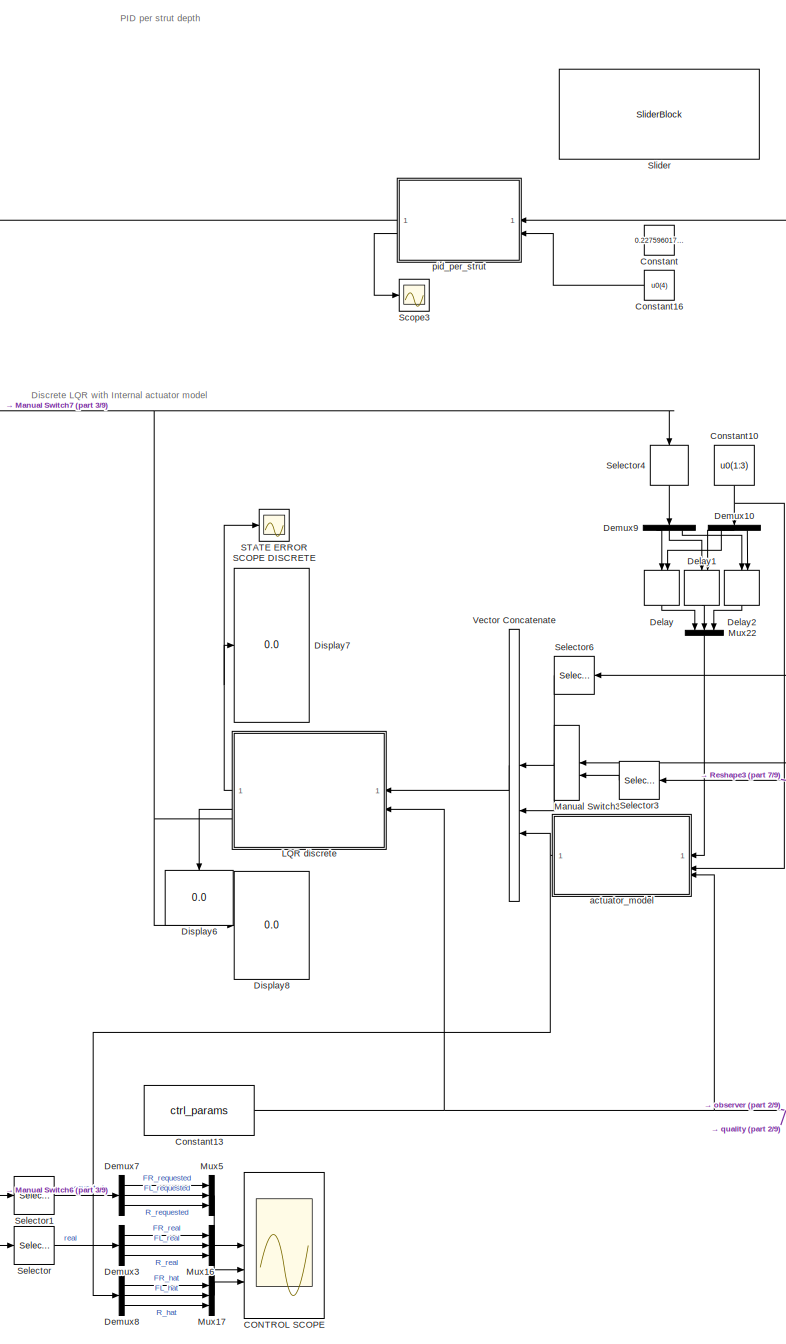
[diagram: root canvas - part 1/9, top center region]
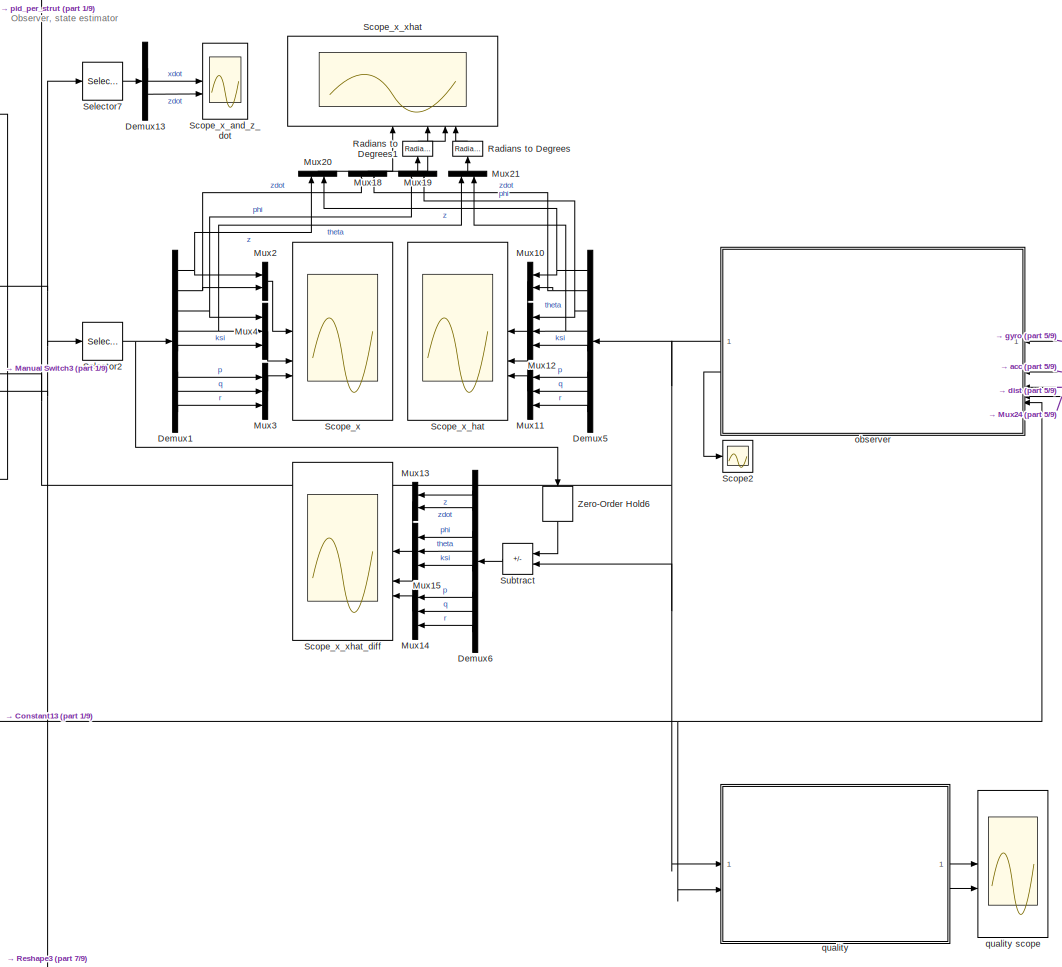
[diagram: root canvas - part 2/9, middle right region]
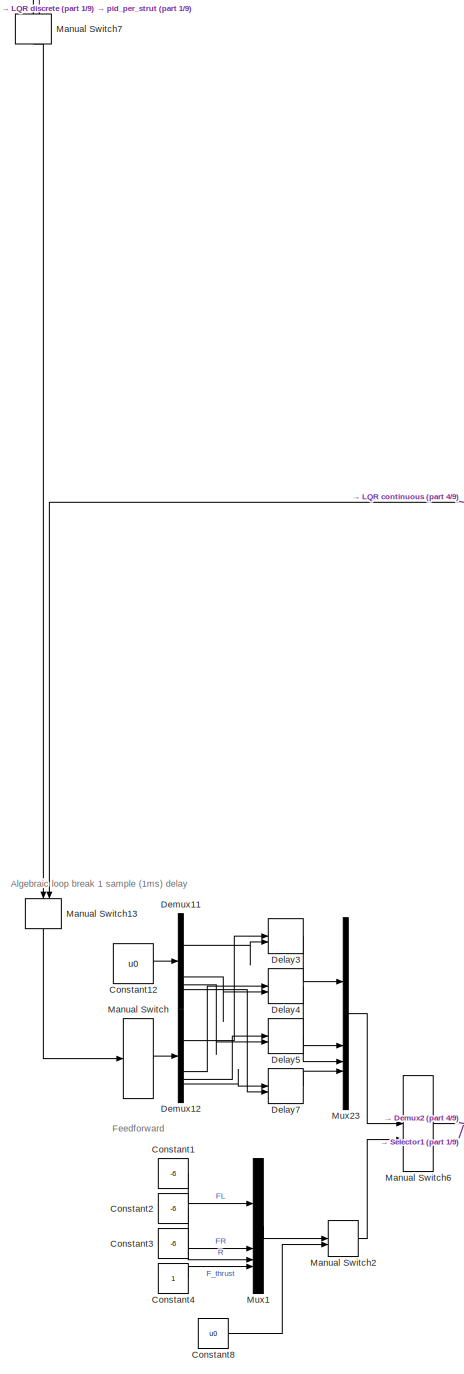
[diagram: root canvas - part 3/9, middle left region]
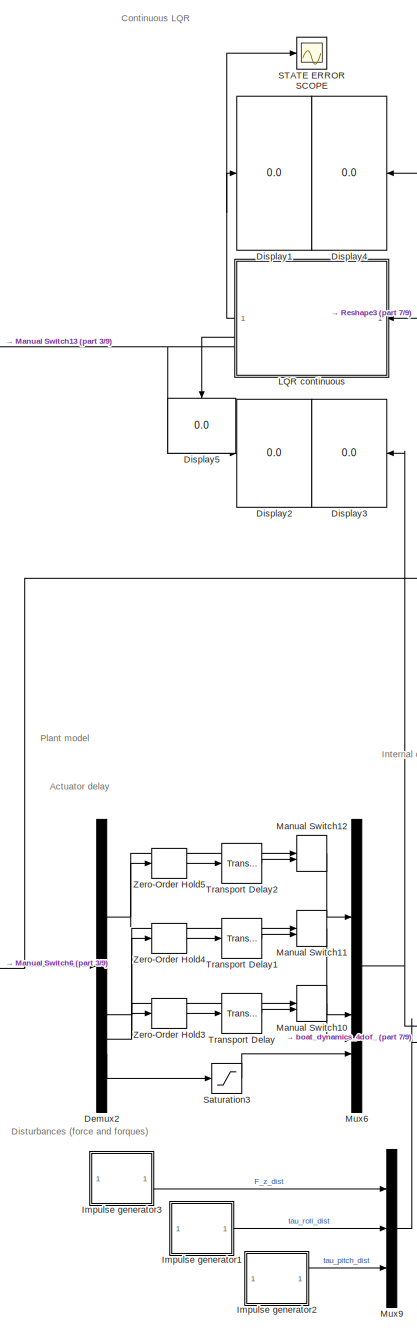
[diagram: root canvas - part 4/9, middle left region]
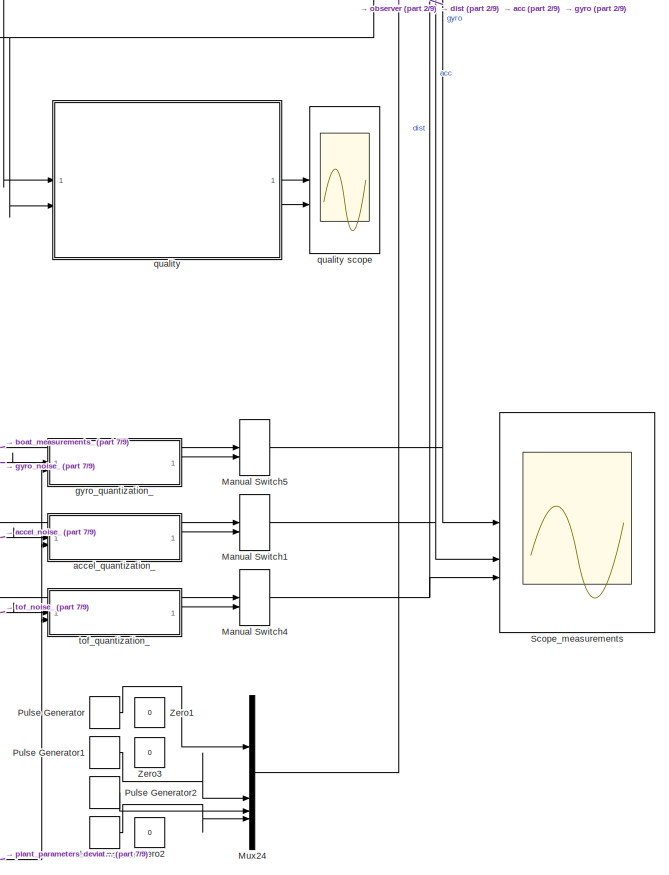
[diagram: root canvas - part 5/9, middle right region]
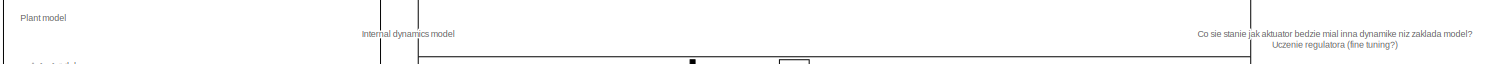
[diagram: root canvas - part 6/9, central region]
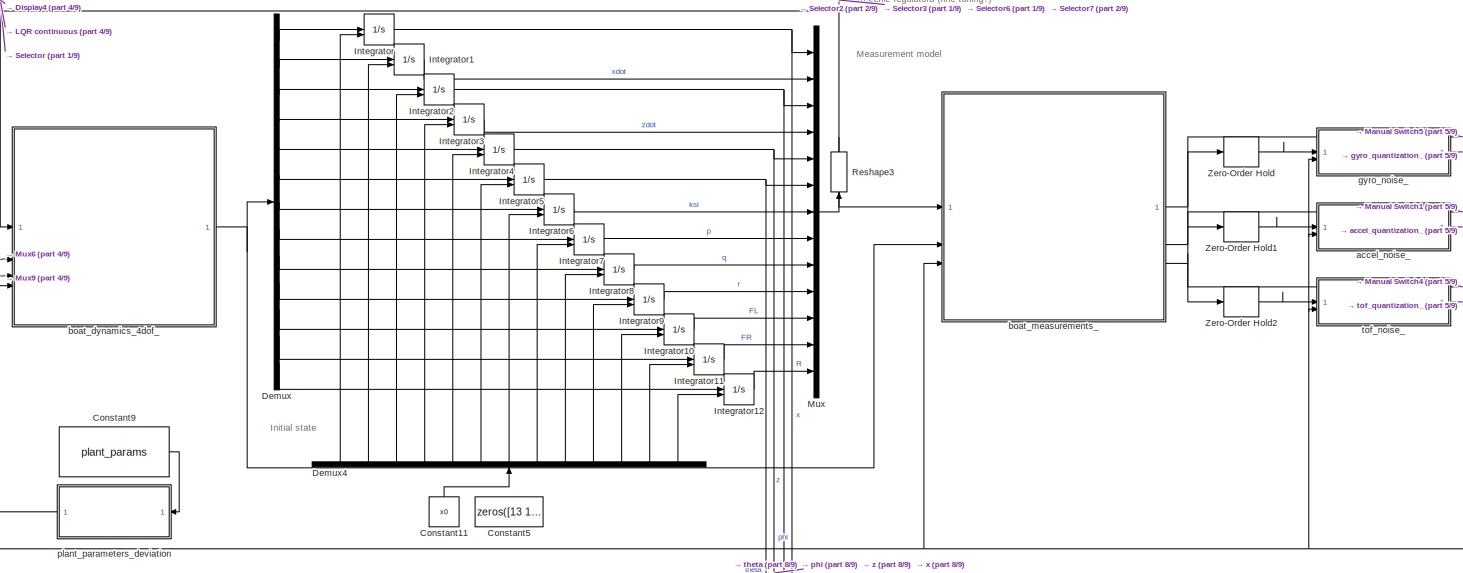
[diagram: root canvas - part 7/9, bottom center region]
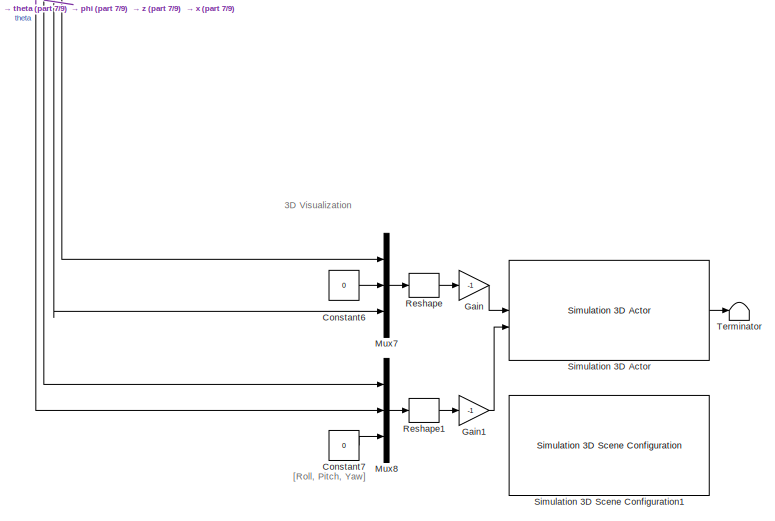
[diagram: root canvas - part 8/9, bottom right region]
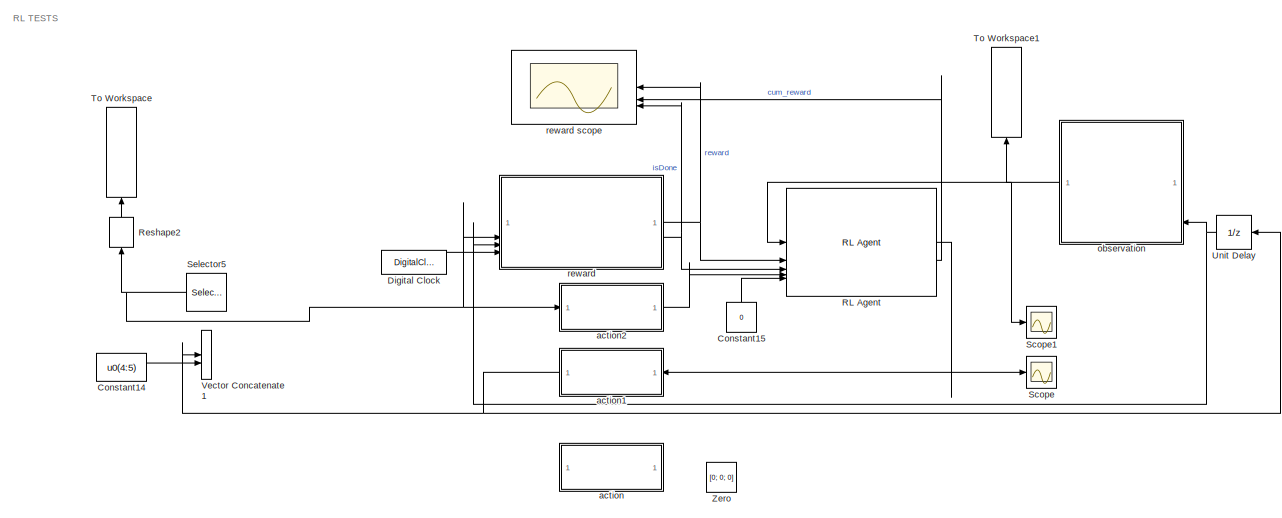
[diagram: root canvas - part 9/9, bottom left region]
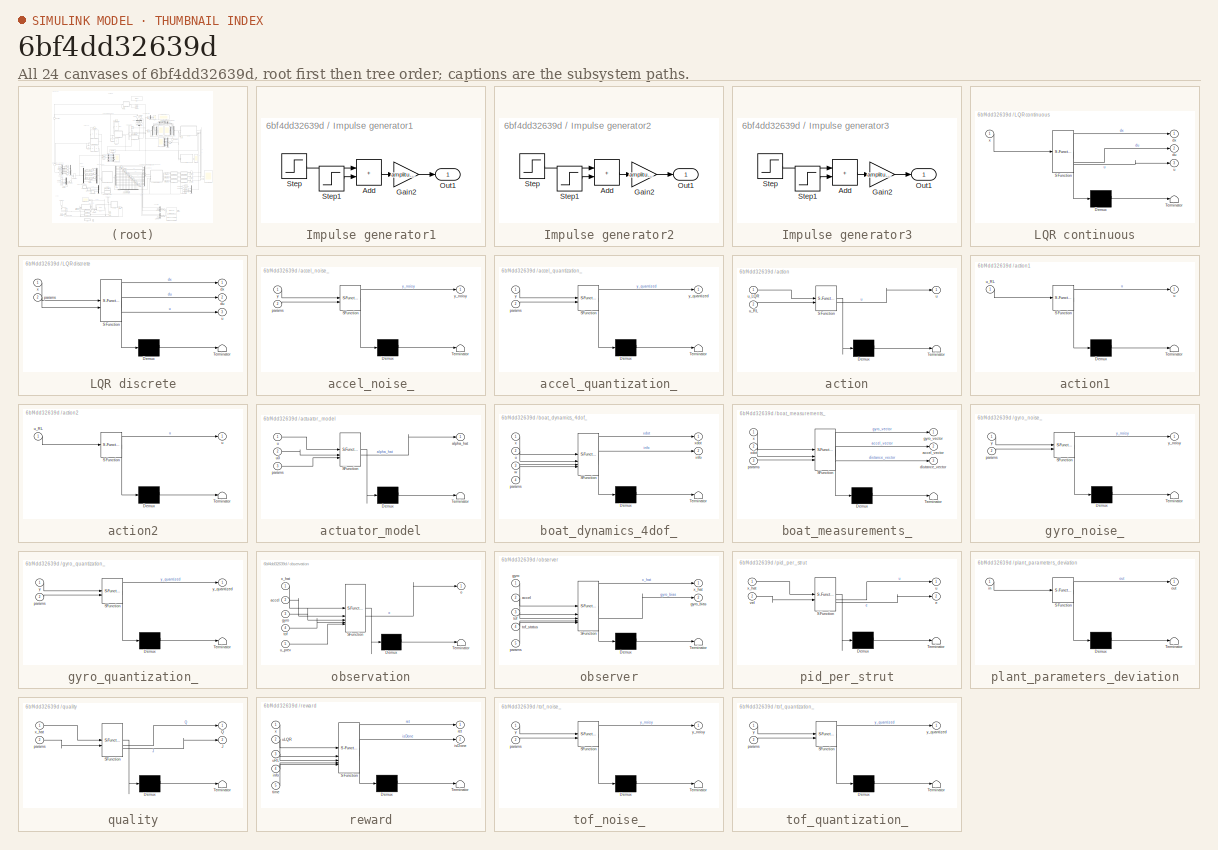
[diagram: thumbnail index - all 24 canvases of the model, root first then tree order]
MODEL slx_6bf4dd32639d
KIND model
CONFIG AbsTol = auto
CONFIG EnableMultiTasking = off
CONFIG FixedStep = Ts_sim
CONFIG MaxStep = auto
CONFIG MinStep = auto
CONFIG RelTol = 1e-3
CONFIG SampleTimeConstraint = Unconstrained
CONFIG SolverName = ode4
CONFIG StartTime = 0.0
CONFIG StopTime = 10
BLOCK [Scope] CONTROL SCOPE
  ActiveDisplayYMaximum = 1265.801193029049
  ActiveDisplayYMinimum = -1274.2081407124294
  DataLoggingSaveFormat = Structure With Time
  DataLoggingVariableName = ScopeAction
  Floating = off
  GraphicalSettings = {"AxesScalingProperties":{"AlignXAxis":"Center","AlignYAxis":"Center","AutoScaleXAxisLimits":false,"AxesScaling":"Manual","AxesScalingNumUpdates":10,"ExpandOnly":true,"ScaleAxesLimitsAtStop":false,"XAxisDataRange":100,"YAxisDataRange":80},"DisplayProperties":{"ColorOrder":["auto","auto","auto","auto","auto","auto","auto","auto","auto","auto","auto","auto","auto","auto","auto","auto","auto","auto",...<+3644ch>
  LayoutDimensionsString = [3,1]
  MultipleDisplayCache = [{"MaxYLimMag":1274.2081407124294,"MaxYLimReal":1265.801193029049,"MinYLimMag":0,"MinYLimReal":-1274.2081407124294,"PlotAsMagnitudePhase":false,"ShowGrid":true,"ShowLegend":true,"Title":"%<SignalLabel>","YLabel":""},{"MaxYLimMag":13.738798469613116,"MaxYLimReal":9.5338461157628309,"MinYLimMag":0,"MinYLimReal":4.9462250211707515,"PlotAsMagnitudePhase":false,"ShowGrid":true,"ShowLegend":true,"Title"...<+247ch>
  NameLocation = right
  NumInputPorts = 3
  ScopeFrameLocation = window
  ShowLegend = on
  Visible = on
  WasSavedAsWebScope = on
  WindowPosition = [1538.000000,265.000000,766.000000,793.000000,]
BLOCK [Constant] Constant
  NameLocation = top
  Value = 0.2275960170697013
BLOCK [Constant] Constant1
  Value = -6
BLOCK [Constant] Constant10
  NameLocation = left
  Value = u0(1:3)
  VectorParams1D = off
BLOCK [Constant] Constant11
  NameLocation = right
  Value = x0
  VectorParams1D = off
BLOCK [Constant] Constant12
  Value = u0
  VectorParams1D = off
BLOCK [Constant] Constant13
  OutDataTypeStr = Bus: ctrl_params_bus
  Value = ctrl_params
  VectorParams1D = off
BLOCK [Constant] Constant14
  Commented = on
  Value = u0(4:5)
  VectorParams1D = off
BLOCK [Constant] Constant15
  Commented = on
  NameLocation = right
  Value = 0
BLOCK [Constant] Constant16
  NameLocation = top
  Value = u0(4)
BLOCK [Constant] Constant2
  Value = -6
BLOCK [Constant] Constant3
  Value = -6
BLOCK [Constant] Constant4
BLOCK [Constant] Constant5
  NameLocation = right
  Value = zeros([13 1])
  VectorParams1D = off
BLOCK [Constant] Constant6
  Value = 0
BLOCK [Constant] Constant7
  Value = 0
BLOCK [Constant] Constant8
  Value = u0
BLOCK [Constant] Constant9
  OutDataTypeStr = Bus: plant_params_bus
  Value = plant_params
  VectorParams1D = off
BLOCK [Delay] Delay
  DelayLength = 3
  InitialConditionSource = Input port
  InputPortMap = u0,p4
  NameLocation = left
  SampleTime = ctrl_params.Ts
BLOCK [Delay] Delay1
  DelayLength = 3
  InitialConditionSource = Input port
  InputPortMap = u0,p4
  NameLocation = left
  SampleTime = ctrl_params.Ts
BLOCK [Delay] Delay2
  DelayLength = 3
  InitialConditionSource = Input port
  InputPortMap = u0,p4
  NameLocation = left
  SampleTime = ctrl_params.Ts
BLOCK [Delay] Delay3
  DelayLength = 1
  InitialConditionSource = Input port
  InputPortMap = u0,p4
  SampleTime = Ts_sim
BLOCK [Delay] Delay4
  DelayLength = 1
  InitialConditionSource = Input port
  InputPortMap = u0,p4
  SampleTime = Ts_sim
BLOCK [Delay] Delay5
  DelayLength = 1
  InitialConditionSource = Input port
  InputPortMap = u0,p4
  SampleTime = Ts_sim
BLOCK [Delay] Delay7
  DelayLength = 1
  InitialConditionSource = Input port
  InputPortMap = u0,p4
  SampleTime = Ts_sim
BLOCK [Demux] Demux
  Outputs = 13
BLOCK [Demux] Demux1
  Outputs = 8
BLOCK [Demux] Demux10
  NameLocation = left
  Outputs = 3
BLOCK [Demux] Demux11
BLOCK [Demux] Demux12
BLOCK [Demux] Demux13
  Outputs = 2
BLOCK [Demux] Demux2
BLOCK [Demux] Demux3
  Outputs = 3
BLOCK [Demux] Demux4
  NameLocation = right
  Outputs = 13
BLOCK [Demux] Demux5
  Outputs = 8
BLOCK [Demux] Demux6
  Outputs = 8
BLOCK [Demux] Demux7
  Outputs = 3
BLOCK [Demux] Demux8
  Outputs = 3
BLOCK [Demux] Demux9
  NameLocation = left
  Outputs = 3
BLOCK [DigitalClock] Digital Clock
  Commented = on
  SampleTime = 0.01
BLOCK [Display] Display1
  Commented = on
  Decimation = 1
  NameLocation = top
BLOCK [Display] Display2
  Commented = on
  Decimation = 1
BLOCK [Display] Display3
  Commented = on
  Decimation = 1
  NameLocation = top
BLOCK [Display] Display4
  Commented = on
  Decimation = 1
  NameLocation = top
BLOCK [Display] Display5
  Commented = on
  Decimation = 1
  NameLocation = left
BLOCK [Display] Display6
  Commented = on
  Decimation = 1
  NameLocation = left
BLOCK [Display] Display7
  Commented = on
  Decimation = 1
  NameLocation = top
BLOCK [Display] Display8
  Commented = on
  Decimation = 1
BLOCK [Gain] Gain
  Gain = -1
BLOCK [Gain] Gain1
  Gain = -1
BLOCK [SubSystem] Impulse generator1
BLOCK [Sum] Impulse generator1/Add
  IconShape = rectangular
BLOCK [Gain] Impulse generator1/Gain2
  Gain = amplitude
BLOCK [Outport] Impulse generator1/Out1
BLOCK [Step] Impulse generator1/Step
  SampleTime = 0
  Time = start
BLOCK [Step] Impulse generator1/Step1
  After = -1
  SampleTime = 0
  Time = start+duration
BLOCK [SubSystem] Impulse generator2
BLOCK [Sum] Impulse generator2/Add
  IconShape = rectangular
BLOCK [Gain] Impulse generator2/Gain2
  Gain = amplitude
BLOCK [Outport] Impulse generator2/Out1
BLOCK [Step] Impulse generator2/Step
  SampleTime = 0
  Time = start
BLOCK [Step] Impulse generator2/Step1
  After = -1
  SampleTime = 0
  Time = start+duration
BLOCK [SubSystem] Impulse generator3
BLOCK [Sum] Impulse generator3/Add
  IconShape = rectangular
BLOCK [Gain] Impulse generator3/Gain2
  Gain = amplitude
BLOCK [Outport] Impulse generator3/Out1
BLOCK [Step] Impulse generator3/Step
  SampleTime = 0
  Time = start
BLOCK [Step] Impulse generator3/Step1
  After = -1
  SampleTime = 0
  Time = start+duration
BLOCK [Integrator] Integrator
  InitialCondition = -0.11
  InitialConditionSource = external
BLOCK [Integrator] Integrator1
  InitialConditionSource = external
BLOCK [Integrator] Integrator10
  InitialConditionSource = external
BLOCK [Integrator] Integrator11
  InitialConditionSource = external
BLOCK [Integrator] Integrator12
  InitialConditionSource = external
BLOCK [Integrator] Integrator2
  InitialCondition = deg2rad(3)
  InitialConditionSource = external
BLOCK [Integrator] Integrator3
  InitialConditionSource = external
BLOCK [Integrator] Integrator4
  InitialConditionSource = external
BLOCK [Integrator] Integrator5
  InitialConditionSource = external
BLOCK [Integrator] Integrator6
  InitialConditionSource = external
BLOCK [Integrator] Integrator7
  InitialConditionSource = external
BLOCK [Integrator] Integrator8
  InitialConditionSource = external
BLOCK [Integrator] Integrator9
  InitialConditionSource = external
BLOCK [SubSystem] LQR continuous
  Commented = on
  ErrorFcn = Stateflow.Translate.translate
  PermitHierarchicalResolution = ExplicitOnly
  SFBlockType = MATLAB Function
  TreatAsAtomicUnit = on
BLOCK [Demux] LQR continuous/ Demux 
  Outputs = 1
BLOCK [S-Function] LQR continuous/ SFunction 
  EnableBusSupport = off
  FunctionName = sf_sfun
  PortCounts = [1 4]
  SFcnIsStateOwnerBlock = off
  SFunctionDeploymentMode = off
  Tag = Stateflow S-Function 10
BLOCK [Terminator] LQR continuous/ Terminator 
BLOCK [Outport] LQR continuous/du
  Port = 2
BLOCK [Outport] LQR continuous/dx
BLOCK [Outport] LQR continuous/u
  Port = 3
BLOCK [Inport] LQR continuous/x
BLOCK [SubSystem] LQR discrete
  ErrorFcn = Stateflow.Translate.translate
  PermitHierarchicalResolution = ExplicitOnly
  SFBlockType = MATLAB Function
  SystemSampleTime = ctrl_params.Ts
  TreatAsAtomicUnit = on
BLOCK [Demux] LQR discrete/ Demux 
  Outputs = 1
BLOCK [S-Function] LQR discrete/ SFunction 
  EnableBusSupport = off
  FunctionName = sf_sfun
  PortCounts = [2 4]
  SFcnIsStateOwnerBlock = off
  SFunctionDeploymentMode = off
  Tag = Stateflow S-Function 13
BLOCK [Terminator] LQR discrete/ Terminator 
BLOCK [Outport] LQR discrete/du
  Port = 2
BLOCK [Outport] LQR discrete/dx
BLOCK [Inport] LQR discrete/params
  Port = 2
BLOCK [Outport] LQR discrete/u
  Port = 3
BLOCK [Inport] LQR discrete/x
BLOCK [ManualSwitch] Manual Switch
  NameLocation = right
BLOCK [ManualSwitch] Manual Switch1
  CurrentSetting = 0
BLOCK [ManualSwitch] Manual Switch10
  CurrentSetting = 0
BLOCK [ManualSwitch] Manual Switch11
  CurrentSetting = 0
BLOCK [ManualSwitch] Manual Switch12
  CurrentSetting = 0
BLOCK [ManualSwitch] Manual Switch13
  NameLocation = left
BLOCK [ManualSwitch] Manual Switch2
  CurrentSetting = 0
BLOCK [ManualSwitch] Manual Switch3
  NameLocation = top
BLOCK [ManualSwitch] Manual Switch4
  CurrentSetting = 0
BLOCK [ManualSwitch] Manual Switch5
  CurrentSetting = 0
BLOCK [ManualSwitch] Manual Switch6
BLOCK [ManualSwitch] Manual Switch7
  CurrentSetting = 0
  NameLocation = left
BLOCK [Mux] Mux
  DisplayOption = bar
  Inputs = 13
BLOCK [Mux] Mux1
  DisplayOption = bar
BLOCK [Mux] Mux10
  DisplayOption = bar
  Inputs = 2
BLOCK [Mux] Mux11
  DisplayOption = bar
  Inputs = 3
BLOCK [Mux] Mux12
  DisplayOption = bar
  Inputs = 3
BLOCK [Mux] Mux13
  DisplayOption = bar
  Inputs = 2
BLOCK [Mux] Mux14
  DisplayOption = bar
  Inputs = 3
BLOCK [Mux] Mux15
  DisplayOption = bar
  Inputs = 3
BLOCK [Mux] Mux16
  DisplayOption = bar
  Inputs = 3
BLOCK [Mux] Mux17
  DisplayOption = bar
  Inputs = 3
BLOCK [Mux] Mux18
  DisplayOption = bar
  Inputs = 2
  NameLocation = right
BLOCK [Mux] Mux19
  DisplayOption = bar
  Inputs = 2
  NameLocation = right
BLOCK [Mux] Mux2
  DisplayOption = bar
  Inputs = 2
BLOCK [Mux] Mux20
  DisplayOption = bar
  Inputs = 2
  NameLocation = right
BLOCK [Mux] Mux21
  DisplayOption = bar
  Inputs = 2
  NameLocation = right
BLOCK [Mux] Mux22
  DisplayOption = bar
  Inputs = 3
  NameLocation = left
BLOCK [Mux] Mux23
  DisplayOption = bar
BLOCK [Mux] Mux24
  DisplayOption = bar
BLOCK [Mux] Mux3
  DisplayOption = bar
  Inputs = 3
BLOCK [Mux] Mux4
  DisplayOption = bar
  Inputs = 3
BLOCK [Mux] Mux5
  DisplayOption = bar
  Inputs = 3
BLOCK [Mux] Mux6
  DisplayOption = bar
BLOCK [Mux] Mux7
  DisplayOption = bar
  Inputs = 3
BLOCK [Mux] Mux8
  DisplayOption = bar
  Inputs = 3
BLOCK [Mux] Mux9
  DisplayOption = bar
  Inputs = 3
BLOCK [DiscretePulseGenerator] Pulse Generator
  Period = 10
  SampleTime = ctrl_params.Ts
BLOCK [DiscretePulseGenerator] Pulse Generator1
  Period = 10
  SampleTime = ctrl_params.Ts
BLOCK [DiscretePulseGenerator] Pulse Generator2
  Period = 10
  SampleTime = ctrl_params.Ts
BLOCK [DiscretePulseGenerator] Pulse Generator3
  Period = 10
  SampleTime = ctrl_params.Ts
BLOCK [Reference] RL Agent  REF=rllib/RL Agent
  Commented = on
  SourceBlock = rllib/RL Agent
  SourceType = RL Agent
BLOCK [Reference] Radians to Degrees  REF=simulink_extras/Transformations/Radians
to Degrees
  NameLocation = right
  SourceBlock = simulink_extras/Transformations/Radians\nto Degrees
  SourceType = RadiansToDegrees
BLOCK [Reference] Radians to Degrees1  REF=simulink_extras/Transformations/Radians
to Degrees
  NameLocation = right
  SourceBlock = simulink_extras/Transformations/Radians\nto Degrees
  SourceType = RadiansToDegrees
BLOCK [Reshape] Reshape
  OutputDimensionality = Row vector (2-D)
BLOCK [Reshape] Reshape1
  OutputDimensionality = Row vector (2-D)
BLOCK [Reshape] Reshape2
  Commented = on
  NameLocation = right
BLOCK [Reshape] Reshape3
  NameLocation = right
  OutputDimensionality = Column vector (2-D)
BLOCK [Scope] STATE ERROR SCOPE
  ActiveDisplayYMaximum = 0.25579071640803624
  ActiveDisplayYMinimum = -0.17004569092279864
  Commented = on
  DataLoggingVariableName = ScopeData3
  Floating = off
  GraphicalSettings = {"Style":{"BackgroundColor":[0.12941176470588237,0.12941176470588237,0.12941176470588237],"AxesColor":[0.07058823529411765,0.07058823529411765,0.07058823529411765],"LabelsColor":[0.8509803921568627,0.8509803921568627,0.8509803921568627],"PreserveColors":false,"Visible":[true,true,true,true,true,true,true,true,true,true,true],"LineStyle":["-","-","-","-","-","-","-","-","-","-","-"],"LineWidth":[1....<+3252ch>
  MultipleDisplayCache = [{"MaxYLimMag":0.25579071640803624,"MaxYLimReal":0.25579071640803624,"MinYLimMag":0,"MinYLimReal":-0.17004569092279864,"PlotAsMagnitudePhase":false,"ShowGrid":true,"ShowLegend":true,"Title":"%<SignalLabel>","YLabel":""}]
  NumInputPorts = 1
  ScopeFrameLocation = window
  ShowLegend = on
  WasSavedAsWebScope = on
  WindowPosition = [742.000000,920.000000,755.000000,777.000000,]
BLOCK [Scope] STATE ERROR SCOPE DISCRETE
  ActiveDisplayYMaximum = 0.25579071640803624
  ActiveDisplayYMinimum = -0.17004569092279864
  Commented = on
  DataLoggingVariableName = ScopeData6
  Floating = off
  GraphicalSettings = {"Style":{"BackgroundColor":[0.12941176470588237,0.12941176470588237,0.12941176470588237],"AxesColor":[0.07058823529411765,0.07058823529411765,0.07058823529411765],"LabelsColor":[0.8509803921568627,0.8509803921568627,0.8509803921568627],"PreserveColors":false,"Visible":[true,true,true,true,true,true,true,true,true,true,true],"LineStyle":["-","-","-","-","-","-","-","-","-","-","-"],"LineWidth":[1....<+3252ch>
  MultipleDisplayCache = [{"MaxYLimMag":0.25579071640803624,"MaxYLimReal":0.25579071640803624,"MinYLimMag":0,"MinYLimReal":-0.17004569092279864,"PlotAsMagnitudePhase":false,"ShowGrid":true,"ShowLegend":true,"Title":"%<SignalLabel>","YLabel":""}]
  NumInputPorts = 1
  ScopeFrameLocation = window
  ShowLegend = on
  WasSavedAsWebScope = on
  WindowPosition = [391.000000,44.000000,755.000000,777.000000,]
BLOCK [Saturate] Saturation3
  LowerLimit = 0
  UpperLimit = 20
BLOCK [Scope] Scope
  ActiveDisplayYMaximum = 1.3794615097714347
  ActiveDisplayYMinimum = -2.4199088465030929
  Commented = on
  DataLoggingVariableName = ScopeData2
  Floating = off
  GraphicalSettings = {"Style":{"BackgroundColor":[0.12941176470588237,0.12941176470588237,0.12941176470588237],"AxesColor":[0.07058823529411765,0.07058823529411765,0.07058823529411765],"LabelsColor":[0.8509803921568627,0.8509803921568627,0.8509803921568627],"PreserveColors":false,"Visible":[true,true,true],"LineStyle":["-","-","-"],"LineWidth":[1.5,1.5,1.5],"BarWidth":[0.9,0.9,0.9],"LineColor":["auto","auto","auto"],"...<+2218ch>
  MultipleDisplayCache = [{"MaxYLimMag":2.4199088465030929,"MaxYLimReal":1.3794615097714347,"MinYLimMag":0,"MinYLimReal":-2.4199088465030929,"PlotAsMagnitudePhase":false,"ShowGrid":true,"ShowLegend":false,"Title":"%<SignalLabel>","YLabel":""}]
  NumInputPorts = 1
  ScopeFrameLocation = window
  WasSavedAsWebScope = on
  WindowPosition = [966.000000,60.000000,560.000000,692.000000,]
BLOCK [Scope] Scope1
  ActiveDisplayYMaximum = 1.0007752200523612
  ActiveDisplayYMinimum = 0.99404961030066707
  Commented = on
  DataLoggingVariableName = ScopeData4
  Floating = off
  GraphicalSettings = {"Style":{"BackgroundColor":[0.12941176470588237,0.12941176470588237,0.12941176470588237],"AxesColor":[0.07058823529411765,0.07058823529411765,0.07058823529411765],"LabelsColor":[0.8509803921568627,0.8509803921568627,0.8509803921568627],"PreserveColors":false,"Visible":[true,true,true,true,true,true,true,true,true,true,true,true],"LineStyle":["-","-","-","-","-","-","-","-","-","-","-","-"],"LineW...<+3259ch>
  MultipleDisplayCache = [{"MaxYLimMag":52.068675248095929,"MaxYLimReal":1.0007752200523612,"MinYLimMag":0,"MinYLimReal":0.99404961030066707,"PlotAsMagnitudePhase":false,"ShowGrid":true,"ShowLegend":false,"Title":"%<SignalLabel>","YLabel":""}]
  NumInputPorts = 1
  ScopeFrameLocation = window
  WasSavedAsWebScope = on
  WindowPosition = [992.000000,1081.000000,446.000000,553.000000,]
BLOCK [Scope] Scope2
  ActiveDisplayYMaximum = 0.00062285522635525655
  ActiveDisplayYMinimum = -7.4600755666939691E-5
  DataLoggingVariableName = ScopeData11
  Floating = off
  GraphicalSettings = {"Style":{"BackgroundColor":[0.12941176470588237,0.12941176470588237,0.12941176470588237],"AxesColor":[0.07058823529411765,0.07058823529411765,0.07058823529411765],"LabelsColor":[0.8509803921568627,0.8509803921568627,0.8509803921568627],"PreserveColors":false,"Visible":[true,true,true],"LineStyle":["-","-","-"],"LineWidth":[1.5,1.5,1.5],"BarWidth":[0.9,0.9,0.9],"LineColor":["auto","auto","auto"],"...<+2266ch>
  MultipleDisplayCache = [{"MaxYLimMag":0.00062285522635525655,"MaxYLimReal":0.00062285522635525655,"MinYLimMag":0,"MinYLimReal":-7.4600755666939691E-5,"PlotAsMagnitudePhase":false,"ShowGrid":true,"ShowLegend":false,"Title":"%<SignalLabel>","YLabel":""}]
  NumInputPorts = 1
  ScopeFrameLocation = window
  WasSavedAsWebScope = on
  WindowPosition = [1694.000000,420.000000,560.000000,420.000000,]
BLOCK [Scope] Scope3
  ActiveDisplayYMaximum = 0.0051605981146346652
  ActiveDisplayYMinimum = -0.14108639149516483
  DataLoggingVariableName = ScopeData12
  Floating = off
  GraphicalSettings = {"Style":{"BackgroundColor":[0.12941176470588237,0.12941176470588237,0.12941176470588237],"AxesColor":[0.07058823529411765,0.07058823529411765,0.07058823529411765],"LabelsColor":[0.8509803921568627,0.8509803921568627,0.8509803921568627],"PreserveColors":false,"Visible":[true,true,true],"LineStyle":["-","-","-"],"LineWidth":[1.5,1.5,1.5],"BarWidth":[0.9,0.9,0.9],"LineColor":["auto","auto","auto"],"...<+2243ch>
  MultipleDisplayCache = [{"MaxYLimMag":0.58937620287189385,"MaxYLimReal":0.0051605981146346652,"MinYLimMag":0,"MinYLimReal":-0.14108639149516483,"PlotAsMagnitudePhase":false,"ShowGrid":true,"ShowLegend":false,"Title":"%<SignalLabel>","YLabel":""}]
  NumInputPorts = 1
  ScopeFrameLocation = window
  Visible = on
  WasSavedAsWebScope = on
  WindowPosition = [2306.000000,265.000000,766.000000,793.000000,]
BLOCK [Scope] Scope_measurements
  ActiveDisplayYMaximum = 426.6462732
  ActiveDisplayYMinimum = -137.3780268
  DataLoggingVariableName = ScopeData1
  Floating = off
  GraphicalSettings = {"AxesScalingProperties":{"AlignXAxis":"Center","AlignYAxis":"Center","AutoScaleXAxisLimits":false,"AxesScaling":"Manual","AxesScalingNumUpdates":10,"ExpandOnly":true,"ScaleAxesLimitsAtStop":false,"XAxisDataRange":100,"YAxisDataRange":80},"DisplayProperties":{"ColorOrder":["auto","auto","auto","auto","auto","auto","auto","auto","auto","auto","auto","auto","auto","auto","auto","auto","auto","auto",...<+3393ch>  <repeated x3 — deduplicated; at blocks: Scope_measurements, Scope_x, Scope_x_xhat_diff>
  LayoutDimensionsString = [3,1]
  MultipleDisplayCache = [{"MaxYLimMag":426.6462732,"MaxYLimReal":426.6462732,"MinYLimMag":0,"MinYLimReal":-137.3780268,"PlotAsMagnitudePhase":false,"ShowGrid":true,"ShowLegend":true,"Title":"%<SignalLabel>","YLabel":""},{"MaxYLimMag":2.506646415,"MaxYLimReal":2.506646415,"MinYLimMag":0,"MinYLimReal":-2.503716735,"PlotAsMagnitudePhase":false,"ShowGrid":true,"ShowLegend":true,"Title":"%<SignalLabel>","YLabel":""},{"MaxYLim...<+183ch>
  NumInputPorts = 3
  ScopeFrameLocation = window
  ShowLegend = on
  Visible = on
  WasSavedAsWebScope = on
  WindowPosition = [1426.000000,234.000000,1536.000000,742.000000,]
BLOCK [Scope] Scope_x
  ActiveDisplayYMaximum = 0.018631710839364757
  ActiveDisplayYMinimum = -0.11336426588314241
  Floating = off
  LayoutDimensionsString = [3,1]
  MultipleDisplayCache = [{"MaxYLimMag":0.11336426588314241,"MaxYLimReal":0.018631710839364757,"MinYLimMag":0,"MinYLimReal":-0.11336426588314241,"PlotAsMagnitudePhase":false,"ShowGrid":true,"ShowLegend":true,"Title":"%<SignalLabel>","YLabel":""},{"MaxYLimMag":0.00014578386982494449,"MaxYLimReal":0.00014578386982494449,"MinYLimMag":0,"MinYLimReal":-6.33637339923045E-5,"PlotAsMagnitudePhase":false,"ShowGrid":true,"ShowLegen...<+272ch>
  NumInputPorts = 3
  ScopeFrameLocation = window
  ShowLegend = on
  WasSavedAsWebScope = on
  WindowPosition = [1.000000,897.000000,1536.000000,814.000000,]
BLOCK [Scope] Scope_x_and_z_dot
  ActiveDisplayString = 2
  ActiveDisplayYMaximum = 1
  ActiveDisplayYMinimum = -1
  DataLoggingVariableName = ScopeData10
  Floating = off
  GraphicalSettings = {"Style":{"BackgroundColor":[0.12941176470588237,0.12941176470588237,0.12941176470588237],"AxesColor":[0.07058823529411765,0.07058823529411765,0.07058823529411765],"LabelsColor":[0.8509803921568627,0.8509803921568627,0.8509803921568627],"PreserveColors":false,"Visible":[true,true],"LineStyle":["-","-"],"LineWidth":[1.5,1.5],"BarWidth":[0.9,0.9],"LineColor":["auto","auto"],"LineFaceAlpha":[1,1],"Li...<+2256ch>
  LayoutDimensionsString = [2,1]
  MultipleDisplayCache = [{"MaxYLimMag":1,"MaxYLimReal":1,"MinYLimMag":0,"MinYLimReal":-1,"PlotAsMagnitudePhase":false,"ShowGrid":true,"ShowLegend":false,"Title":"%<SignalLabel>","YLabel":""},{"MaxYLimMag":1,"MaxYLimReal":1,"MinYLimMag":0,"MinYLimReal":-1,"PlotAsMagnitudePhase":false,"ShowGrid":true,"ShowLegend":false,"Title":"%<SignalLabel>","YLabel":""}]
  NumInputPorts = 2
  ScopeFrameLocation = window
  WasSavedAsWebScope = on
  WindowPosition = [1.000000,36.000000,1534.000000,793.000000,]
BLOCK [Scope] Scope_x_hat
  ActiveDisplayYMaximum = 1
  ActiveDisplayYMinimum = -1
  DataLoggingSaveFormat = Structure With Time
  DataLoggingVariableName = ScopeObservation
  Floating = off
  GraphicalSettings = {"AxesScalingProperties":{"AlignXAxis":"Center","AlignYAxis":"Center","AutoScaleXAxisLimits":false,"AxesScaling":"Manual","AxesScalingNumUpdates":10,"ExpandOnly":true,"ScaleAxesLimitsAtStop":false,"XAxisDataRange":100,"YAxisDataRange":80},"DisplayProperties":{"ColorOrder":["auto","auto","auto","auto","auto","auto","auto","auto","auto","auto","auto","auto","auto","auto","auto","auto","auto","auto",...<+3398ch>
  LayoutDimensionsString = [3,1]
  MultipleDisplayCache = [{"MaxYLimMag":1,"MaxYLimReal":1,"MinYLimMag":0,"MinYLimReal":-1,"PlotAsMagnitudePhase":false,"ShowGrid":true,"ShowLegend":true,"Title":"%<SignalLabel>","YLabel":""},{"MaxYLimMag":1,"MaxYLimReal":1,"MinYLimMag":0,"MinYLimReal":-1,"PlotAsMagnitudePhase":false,"ShowGrid":true,"ShowLegend":true,"Title":"%<SignalLabel>","YLabel":""},{"MaxYLimMag":1,"MaxYLimReal":1,"MinYLimMag":0,"MinYLimReal":-1,"Plot...<+96ch>
  NumInputPorts = 3
  ScopeFrameLocation = window
  ShowLegend = on
  WasSavedAsWebScope = on
  WindowPosition = [704.000000,79.000000,525.000000,724.000000,]
BLOCK [Scope] Scope_x_xhat
  ActiveDisplayYMaximum = -0.094504682698816692
  ActiveDisplayYMinimum = -0.153101585145258
  DataLoggingVariableName = ScopeData7
  Floating = off
  GraphicalSettings = {"AxesScalingProperties":{"AlignXAxis":"Center","AlignYAxis":"Center","AutoScaleXAxisLimits":false,"AxesScaling":"Manual","AxesScalingNumUpdates":10,"ExpandOnly":true,"ScaleAxesLimitsAtStop":false,"XAxisDataRange":100,"YAxisDataRange":80},"Cursors":{"CursorChannels":["auto","auto"],"Enabled":false,"Horizontal":true,"LinkToWaveform":true,"LockSpacing":false,"ShowMeasurement":true,"ShowPanel":false,...<+4148ch>
  LayoutDimensionsString = [4,1]
  MultipleDisplayCache = [{"MaxYLimMag":0.1596256112610325,"MaxYLimReal":-0.094504682698816692,"MinYLimMag":0,"MinYLimReal":-0.153101585145258,"PlotAsMagnitudePhase":false,"ShowGrid":true,"ShowLegend":true,"Title":"%<SignalLabel>","YLabel":""},{"MaxYLimMag":0.0512862918090167,"MaxYLimReal":0.045901693298607917,"MinYLimMag":0,"MinYLimReal":-0.0512862918090167,"PlotAsMagnitudePhase":false,"ShowGrid":true,"ShowLegend":true,"...<+473ch>
  NameLocation = right
  NumInputPorts = 4
  ScopeFrameLocation = window
  ShowLegend = on
  Visible = on
  WasSavedAsWebScope = on
  WindowPosition = [1.000000,41.000000,1536.000000,801.000000,]
BLOCK [Scope] Scope_x_xhat_diff
  ActiveDisplayYMaximum = 0.035113413743775315
  ActiveDisplayYMinimum = -0.030408977747156094
  DataLoggingVariableName = ScopeData5
  Floating = off
  LayoutDimensionsString = [3,1]
  MultipleDisplayCache = [{"MaxYLimMag":0.035113413743775315,"MaxYLimReal":0.035113413743775315,"MinYLimMag":0,"MinYLimReal":-0.030408977747156094,"PlotAsMagnitudePhase":false,"ShowGrid":true,"ShowLegend":true,"Title":"%<SignalLabel>","YLabel":""},{"MaxYLimMag":0.068999310289436455,"MaxYLimReal":0.068999310289436455,"MinYLimMag":0,"MinYLimReal":-0.011915949432757079,"PlotAsMagnitudePhase":false,"ShowGrid":true,"ShowLegend...<+268ch>
  NumInputPorts = 3
  ScopeFrameLocation = window
  ShowLegend = on
  WasSavedAsWebScope = on
  WindowPosition = [514.000000,42.000000,508.000000,793.000000,]
BLOCK [Selector] Selector
  IndexOptions = Index vector (dialog)
  Indices = [11 12 13]
  InputPortWidth = 13
  OutputSizes = 1
BLOCK [Selector] Selector1
  IndexOptions = Index vector (dialog)
  Indices = [1 2 3]
  InputPortWidth = 4
  OutputSizes = 1
BLOCK [Selector] Selector2
  IndexOptions = Index vector (dialog)
  Indices = [3 4 5 6 7 8 9 10]
  InputPortWidth = 13
  OutputSizes = 1
BLOCK [Selector] Selector3
  IndexOptions = Index vector (dialog)
  Indices = [3 4 5 6 7 8 9 10]
  InputPortWidth = 13
  NameLocation = top
  OutputSizes = 1
BLOCK [Selector] Selector4
  IndexOptions = Index vector (dialog)
  Indices = [1 2 3]
  InputPortWidth = 4
  NameLocation = left
  OutputSizes = 1
BLOCK [Selector] Selector5
  Commented = on
  IndexOptions = Index vector (dialog)
  Indices = [1 2 3]
  InputPortWidth = 5
  NameLocation = top
  OutputSizes = 1
BLOCK [Selector] Selector6
  IndexOptions = Index vector (dialog)
  Indices = [1 2]
  InputPortWidth = 13
  NameLocation = top
  OutputSizes = 1
BLOCK [Selector] Selector7
  IndexOptions = Index vector (dialog)
  Indices = [ 2  4 ]
  InputPortWidth = 13
  OutputSizes = 1
BLOCK [Reference] Simulation 3D Actor  REF=sim3dlib/Simulation 3D Actor
  LibrarySourceBlock = sl3dlib/Simulation 3D/Actors/Simulation 3D Actor
  Priority = 1
  SourceBlock = sim3dlib/Simulation 3D Actor
  SourceType = Simulation 3D Actor
BLOCK [Reference] Simulation 3D Scene Configuration1  REF=sim3dlib/Simulation 3D Scene Configuration
  LibrarySourceBlock = sl3dlib/Simulation 3D/Environment/Simulation 3D Scene Configuration
  Priority = 0
  SourceBlock = sim3dlib/Simulation 3D Scene Configuration
  SourceType = Simulation 3D Scene Configuration
BLOCK [SliderBlock] Slider
  ScaleMax = 2
BLOCK [Sum] Subtract
  IconShape = rectangular
  Inputs = +-
BLOCK [Terminator] Terminator
BLOCK [ToWorkspace] To Workspace
  Commented = on
  FixptAsFi = on
  MaxDataPoints = inf
  NameLocation = right
  SampleTime = -1
  SaveFormat = Structure With Time
  VariableName = act
BLOCK [ToWorkspace] To Workspace1
  Commented = on
  FixptAsFi = on
  MaxDataPoints = inf
  NameLocation = right
  SampleTime = -1
  SaveFormat = Structure With Time
  VariableName = obs
BLOCK [TransportDelay] Transport Delay
  DelayTime = plant_params.hydrofoils.dynamics.L
  InitialOutput = u0(3)
BLOCK [TransportDelay] Transport Delay1
  DelayTime = plant_params.hydrofoils.dynamics.L
  InitialOutput = u0(2)
BLOCK [TransportDelay] Transport Delay2
  DelayTime = plant_params.hydrofoils.dynamics.L
  InitialOutput = u0(1)
BLOCK [UnitDelay] Unit Delay
  Commented = on
  HasFrameUpgradeWarning = on
  InitialCondition = u0(1:3)
  NameLocation = top
  SampleTime = 0.01
BLOCK [Concatenate] Vector Concatenate
  NameLocation = top
  NumInputs = 3
BLOCK [Concatenate] Vector Concatenate1
  Commented = on
BLOCK [Constant] Zero
  Commented = on
  NameLocation = top
  OutDataTypeStr = Inherit: Inherit via back propagation
  Value = [0; 0; 0]
BLOCK [ZeroOrderHold] Zero-Order Hold
  SampleTime = plant_params.gyro.sample_time
BLOCK [ZeroOrderHold] Zero-Order Hold1
  SampleTime = plant_params.accel.sample_time
BLOCK [ZeroOrderHold] Zero-Order Hold2
  SampleTime = plant_params.tof.sample_time
BLOCK [ZeroOrderHold] Zero-Order Hold3
  SampleTime = plant_params.hydrofoils.dynamics.Ts_act
BLOCK [ZeroOrderHold] Zero-Order Hold4
  SampleTime = plant_params.hydrofoils.dynamics.Ts_act
BLOCK [ZeroOrderHold] Zero-Order Hold5
  SampleTime = plant_params.hydrofoils.dynamics.Ts_act
BLOCK [ZeroOrderHold] Zero-Order Hold6
  NameLocation = left
  SampleTime = ctrl_params.Ts
BLOCK [Constant] Zero1
  OutDataTypeStr = Inherit: Inherit via back propagation
  Value = 0
BLOCK [Constant] Zero2
  OutDataTypeStr = Inherit: Inherit via back propagation
  Value = 0
BLOCK [Constant] Zero3
  OutDataTypeStr = Inherit: Inherit via back propagation
  Value = 0
BLOCK [SubSystem] accel_noise_
  ErrorFcn = Stateflow.Translate.translate
  PermitHierarchicalResolution = ExplicitOnly
  SFBlockType = MATLAB Function
  SystemSampleTime = plant_params.accel.sample_time
  TreatAsAtomicUnit = on
BLOCK [Demux] accel_noise_/ Demux 
  Outputs = 1
BLOCK [S-Function] accel_noise_/ SFunction 
  EnableBusSupport = off
  FunctionName = sf_sfun
  PortCounts = [2 2]
  SFcnIsStateOwnerBlock = off
  SFunctionDeploymentMode = off
  Tag = Stateflow S-Function 6
BLOCK [Terminator] accel_noise_/ Terminator 
BLOCK [Inport] accel_noise_/params
  Port = 2
BLOCK [Inport] accel_noise_/y
BLOCK [Outport] accel_noise_/y_noisy
BLOCK [SubSystem] accel_quantization_
  ErrorFcn = Stateflow.Translate.translate
  PermitHierarchicalResolution = ExplicitOnly
  SFBlockType = MATLAB Function
  SystemSampleTime = plant_params.accel.sample_time
  TreatAsAtomicUnit = on
BLOCK [Demux] accel_quantization_/ Demux 
  Outputs = 1
BLOCK [S-Function] accel_quantization_/ SFunction 
  EnableBusSupport = off
  FunctionName = sf_sfun
  PortCounts = [2 2]
  SFcnIsStateOwnerBlock = off
  SFunctionDeploymentMode = off
  Tag = Stateflow S-Function 8
BLOCK [Terminator] accel_quantization_/ Terminator 
BLOCK [Inport] accel_quantization_/params
  Port = 2
BLOCK [Inport] accel_quantization_/y
BLOCK [Outport] accel_quantization_/y_quantized
BLOCK [SubSystem] action
  Commented = on
  ErrorFcn = Stateflow.Translate.translate
  NameLocation = top
  PermitHierarchicalResolution = ExplicitOnly
  SFBlockType = MATLAB Function
  TreatAsAtomicUnit = on
BLOCK [Demux] action/ Demux 
  Outputs = 1
BLOCK [S-Function] action/ SFunction 
  EnableBusSupport = off
  FunctionName = sf_sfun
  PortCounts = [2 2]
  SFcnIsStateOwnerBlock = off
  SFunctionDeploymentMode = off
  Tag = Stateflow S-Function 16
BLOCK [Terminator] action/ Terminator 
BLOCK [Outport] action/u
BLOCK [Inport] action/u_LQR
BLOCK [Inport] action/u_RL
  Port = 2
BLOCK [SubSystem] action1
  Commented = on
  ErrorFcn = Stateflow.Translate.translate
  NameLocation = top
  PermitHierarchicalResolution = ExplicitOnly
  SFBlockType = MATLAB Function
  TreatAsAtomicUnit = on
BLOCK [Demux] action1/ Demux 
  Outputs = 1
BLOCK [S-Function] action1/ SFunction 
  EnableBusSupport = off
  FunctionName = sf_sfun
  PortCounts = [1 2]
  SFcnIsStateOwnerBlock = off
  SFunctionDeploymentMode = off
  Tag = Stateflow S-Function 18
BLOCK [Terminator] action1/ Terminator 
BLOCK [Outport] action1/u
BLOCK [Inport] action1/u_RL
BLOCK [SubSystem] action2
  Commented = on
  ErrorFcn = Stateflow.Translate.translate
  PermitHierarchicalResolution = ExplicitOnly
  SFBlockType = MATLAB Function
  TreatAsAtomicUnit = on
BLOCK [Demux] action2/ Demux 
  Outputs = 1
BLOCK [S-Function] action2/ SFunction 
  EnableBusSupport = off
  FunctionName = sf_sfun
  PortCounts = [1 2]
  SFcnIsStateOwnerBlock = off
  SFunctionDeploymentMode = off
  Tag = Stateflow S-Function 19
BLOCK [Terminator] action2/ Terminator 
BLOCK [Outport] action2/u
BLOCK [Inport] action2/u_RL
BLOCK [SubSystem] actuator_model
  ErrorFcn = Stateflow.Translate.translate
  PermitHierarchicalResolution = ExplicitOnly
  SFBlockType = MATLAB Function
  SystemSampleTime = ctrl_params.Ts
  TreatAsAtomicUnit = on
BLOCK [Demux] actuator_model/ Demux 
  Outputs = 1
BLOCK [S-Function] actuator_model/ SFunction 
  EnableBusSupport = off
  FunctionName = sf_sfun
  PortCounts = [3 2]
  SFcnIsStateOwnerBlock = off
  SFunctionDeploymentMode = off
  Tag = Stateflow S-Function 14
BLOCK [Terminator] actuator_model/ Terminator 
BLOCK [Outport] actuator_model/alpha_hat
BLOCK [Inport] actuator_model/params
  Port = 3
BLOCK [Inport] actuator_model/u
BLOCK [Inport] actuator_model/u0
  Port = 2
BLOCK [SubSystem] boat_dynamics_4dof_
  ErrorFcn = Stateflow.Translate.translate
  PermitHierarchicalResolution = ExplicitOnly
  SFBlockType = MATLAB Function
  TreatAsAtomicUnit = on
BLOCK [Demux] boat_dynamics_4dof_/ Demux 
  Outputs = 1
BLOCK [S-Function] boat_dynamics_4dof_/ SFunction 
  EnableBusSupport = off
  FunctionName = sf_sfun
  PortCounts = [4 3]
  SFcnIsStateOwnerBlock = off
  SFunctionDeploymentMode = off
  Tag = Stateflow S-Function 2
BLOCK [Terminator] boat_dynamics_4dof_/ Terminator 
BLOCK [Outport] boat_dynamics_4dof_/info
  Port = 2
BLOCK [Inport] boat_dynamics_4dof_/params
  Port = 4
BLOCK [Inport] boat_dynamics_4dof_/u
  Port = 2
BLOCK [Inport] boat_dynamics_4dof_/w
  Port = 3
BLOCK [Inport] boat_dynamics_4dof_/x
BLOCK [Outport] boat_dynamics_4dof_/xdot
BLOCK [SubSystem] boat_measurements_
  ErrorFcn = Stateflow.Translate.translate
  PermitHierarchicalResolution = ExplicitOnly
  SFBlockType = MATLAB Function
  TreatAsAtomicUnit = on
BLOCK [Demux] boat_measurements_/ Demux 
  Outputs = 1
BLOCK [S-Function] boat_measurements_/ SFunction 
  EnableBusSupport = off
  FunctionName = sf_sfun
  PortCounts = [3 4]
  SFcnIsStateOwnerBlock = off
  SFunctionDeploymentMode = off
  Tag = Stateflow S-Function 3
BLOCK [Terminator] boat_measurements_/ Terminator 
BLOCK [Outport] boat_measurements_/accel_vector
  Port = 2
BLOCK [Outport] boat_measurements_/distance_vector
  Port = 3
BLOCK [Outport] boat_measurements_/gyro_vector
BLOCK [Inport] boat_measurements_/params
  Port = 3
BLOCK [Inport] boat_measurements_/x
BLOCK [Inport] boat_measurements_/xdot
  Port = 2
BLOCK [SubSystem] gyro_noise_
  ErrorFcn = Stateflow.Translate.translate
  PermitHierarchicalResolution = ExplicitOnly
  SFBlockType = MATLAB Function
  SystemSampleTime = plant_params.gyro.sample_time
  TreatAsAtomicUnit = on
BLOCK [Demux] gyro_noise_/ Demux 
  Outputs = 1
BLOCK [S-Function] gyro_noise_/ SFunction 
  EnableBusSupport = off
  FunctionName = sf_sfun
  PortCounts = [2 2]
  SFcnIsStateOwnerBlock = off
  SFunctionDeploymentMode = off
  Tag = Stateflow S-Function 4
BLOCK [Terminator] gyro_noise_/ Terminator 
BLOCK [Inport] gyro_noise_/params
  Port = 2
BLOCK [Inport] gyro_noise_/y
BLOCK [Outport] gyro_noise_/y_noisy
BLOCK [SubSystem] gyro_quantization_
  ErrorFcn = Stateflow.Translate.translate
  PermitHierarchicalResolution = ExplicitOnly
  SFBlockType = MATLAB Function
  SystemSampleTime = plant_params.gyro.sample_time
  TreatAsAtomicUnit = on
BLOCK [Demux] gyro_quantization_/ Demux 
  Outputs = 1
BLOCK [S-Function] gyro_quantization_/ SFunction 
  EnableBusSupport = off
  FunctionName = sf_sfun
  PortCounts = [2 2]
  SFcnIsStateOwnerBlock = off
  SFunctionDeploymentMode = off
  Tag = Stateflow S-Function 5
BLOCK [Terminator] gyro_quantization_/ Terminator 
BLOCK [Inport] gyro_quantization_/params
  Port = 2
BLOCK [Inport] gyro_quantization_/y
BLOCK [Outport] gyro_quantization_/y_quantized
BLOCK [SubSystem] observation
  Commented = on
  ErrorFcn = Stateflow.Translate.translate
  NameLocation = top
  PermitHierarchicalResolution = ExplicitOnly
  SFBlockType = MATLAB Function
  SystemSampleTime = 0.01
  TreatAsAtomicUnit = on
BLOCK [Demux] observation/ Demux 
  Outputs = 1
BLOCK [S-Function] observation/ SFunction 
  EnableBusSupport = off
  FunctionName = sf_sfun
  PortCounts = [5 2]
  SFcnIsStateOwnerBlock = off
  SFunctionDeploymentMode = off
  Tag = Stateflow S-Function 17
BLOCK [Terminator] observation/ Terminator 
BLOCK [Inport] observation/accel
  Port = 2
BLOCK [Inport] observation/gyro
  Port = 3
BLOCK [Outport] observation/o
BLOCK [Inport] observation/tof
  Port = 4
BLOCK [Inport] observation/u_prev
  Port = 5
BLOCK [Inport] observation/x_hat
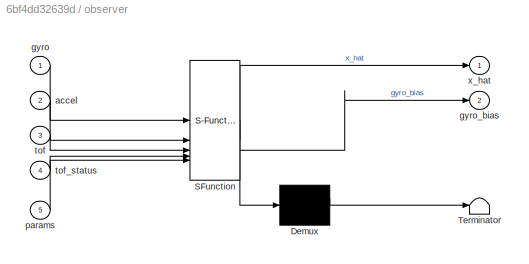
BLOCK [SubSystem] observer
  ErrorFcn = Stateflow.Translate.translate
  PermitHierarchicalResolution = ExplicitOnly
  SFBlockType = MATLAB Function
  SystemSampleTime = ctrl_params.Ts
  TreatAsAtomicUnit = on
BLOCK [Demux] observer/ Demux 
  Outputs = 1
BLOCK [S-Function] observer/ SFunction 
  EnableBusSupport = off
  FunctionName = sf_sfun
  PortCounts = [5 3]
  SFcnIsStateOwnerBlock = off
  SFunctionDeploymentMode = off
  Tag = Stateflow S-Function 12
BLOCK [Terminator] observer/ Terminator 
BLOCK [Inport] observer/accel
  Port = 2
BLOCK [Inport] observer/gyro
BLOCK [Outport] observer/gyro_bias
  Port = 2
BLOCK [Inport] observer/params
  Port = 5
BLOCK [Inport] observer/tof
  Port = 3
BLOCK [Inport] observer/tof_status
  Port = 4
BLOCK [Outport] observer/x_hat
BLOCK [SubSystem] pid_per_strut
  ErrorFcn = Stateflow.Translate.translate
  PermitHierarchicalResolution = ExplicitOnly
  SFBlockType = MATLAB Function
  SystemSampleTime = ctrl_params.Ts
  TreatAsAtomicUnit = on
BLOCK [Demux] pid_per_strut/ Demux 
  Outputs = 1
BLOCK [S-Function] pid_per_strut/ SFunction 
  EnableBusSupport = off
  FunctionName = sf_sfun
  PortCounts = [2 3]
  SFcnIsStateOwnerBlock = off
  SFunctionDeploymentMode = off
  Tag = Stateflow S-Function 20
BLOCK [Terminator] pid_per_strut/ Terminator 
BLOCK [Outport] pid_per_strut/e
  Port = 2
BLOCK [Outport] pid_per_strut/u
BLOCK [Inport] pid_per_strut/vel
  Port = 2
BLOCK [Inport] pid_per_strut/x_hat
BLOCK [SubSystem] plant_parameters_deviation
  Commented = through
  ErrorFcn = Stateflow.Translate.translate
  PermitHierarchicalResolution = ExplicitOnly
  SFBlockType = MATLAB Function
  TreatAsAtomicUnit = on
BLOCK [Demux] plant_parameters_deviation/ Demux 
  Outputs = 1
BLOCK [S-Function] plant_parameters_deviation/ SFunction 
  EnableBusSupport = off
  FunctionName = sf_sfun
  PortCounts = [1 2]
  SFcnIsStateOwnerBlock = off
  SFunctionDeploymentMode = off
  Tag = Stateflow S-Function 11
BLOCK [Terminator] plant_parameters_deviation/ Terminator 
BLOCK [Inport] plant_parameters_deviation/in
BLOCK [Outport] plant_parameters_deviation/out
BLOCK [SubSystem] quality
  ErrorFcn = Stateflow.Translate.translate
  PermitHierarchicalResolution = ExplicitOnly
  SFBlockType = MATLAB Function
  SystemSampleTime = ctrl_params.Ts
  TreatAsAtomicUnit = on
BLOCK [Scope] quality scope
  ActiveDisplayYMaximum = 1.1240659773755071
  ActiveDisplayYMinimum = -0.12455482970730834
  DataLoggingVariableName = ScopeData8
  Floating = off
  GraphicalSettings = {"Style":{"BackgroundColor":[0.12941176470588237,0.12941176470588237,0.12941176470588237],"AxesColor":[0.07058823529411765,0.07058823529411765,0.07058823529411765],"LabelsColor":[0.8509803921568627,0.8509803921568627,0.8509803921568627],"PreserveColors":false,"Visible":[true,true,true,true],"LineStyle":["-","-","-","-"],"LineWidth":[1.5,1.5,1.5,1.5],"BarWidth":[0.9,0.9,0.9,0.9],"LineColor":["auto"...<+2643ch>
  LayoutDimensionsString = [2,1]
  MultipleDisplayCache = [{"MaxYLimMag":1.1240659773755071,"MaxYLimReal":1.1240659773755071,"MinYLimMag":0,"MinYLimReal":-0.12455482970730834,"PlotAsMagnitudePhase":false,"ShowGrid":true,"ShowLegend":false,"Title":"%<SignalLabel>","YLabel":""},{"MaxYLimMag":9.0987266930881816,"MaxYLimReal":9.0987266930881816,"MinYLimMag":0,"MinYLimReal":-1.0100847210194446,"PlotAsMagnitudePhase":false,"ShowGrid":true,"ShowLegend":false,"T...<+36ch>
  NumInputPorts = 2
  ScopeFrameLocation = window
  WasSavedAsWebScope = on
  WindowPosition = [576.000000,968.000000,912.000000,734.000000,]
BLOCK [Demux] quality/ Demux 
  Outputs = 1
BLOCK [S-Function] quality/ SFunction 
  EnableBusSupport = off
  FunctionName = sf_sfun
  PortCounts = [2 3]
  SFcnIsStateOwnerBlock = off
  SFunctionDeploymentMode = off
  Tag = Stateflow S-Function 1
BLOCK [Terminator] quality/ Terminator 
BLOCK [Outport] quality/J
  Port = 2
BLOCK [Outport] quality/Q
BLOCK [Inport] quality/params
  Port = 2
BLOCK [Inport] quality/x_hat
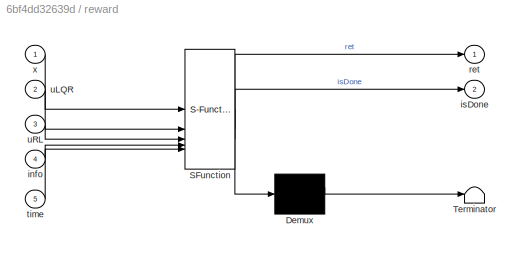
BLOCK [SubSystem] reward
  Commented = on
  ErrorFcn = Stateflow.Translate.translate
  PermitHierarchicalResolution = ExplicitOnly
  SFBlockType = MATLAB Function
  SystemSampleTime = ctrl_params.Ts
  TreatAsAtomicUnit = on
BLOCK [Scope] reward scope
  ActiveDisplayYMaximum = 277.10834326270424
  ActiveDisplayYMinimum = -2399.5814447480943
  Commented = on
  DataLoggingVariableName = ScopeData9
  Floating = off
  GraphicalSettings = {"Style":{"BackgroundColor":[0.12941176470588237,0.12941176470588237,0.12941176470588237],"AxesColor":[0.07058823529411765,0.07058823529411765,0.07058823529411765],"LabelsColor":[0.8509803921568627,0.8509803921568627,0.8509803921568627],"PreserveColors":false,"Visible":[true,true,true],"LineStyle":["-","-","-"],"LineWidth":[1.5,1.5,1.5],"BarWidth":[0.9,0.9,0.9],"LineColor":["auto","auto","auto"],"...<+2790ch>
  LayoutDimensionsString = [3,1]
  MultipleDisplayCache = [{"MaxYLimMag":2399.5814447480943,"MaxYLimReal":277.10834326270424,"MinYLimMag":0,"MinYLimReal":-2399.5814447480943,"PlotAsMagnitudePhase":false,"ShowGrid":true,"ShowLegend":false,"Title":"%<SignalLabel>","YLabel":""},{"MaxYLimMag":3791.7482622681264,"MaxYLimReal":421.30536247423618,"MinYLimMag":0,"MinYLimReal":-3791.7482622681264,"PlotAsMagnitudePhase":false,"ShowGrid":true,"ShowLegend":false,"Ti...<+227ch>
  NumInputPorts = 3
  ScopeFrameLocation = window
  WasSavedAsWebScope = on
  WindowPosition = [1.000000,897.000000,1536.000000,814.000000,]
BLOCK [Demux] reward/ Demux 
  Outputs = 1
BLOCK [S-Function] reward/ SFunction 
  EnableBusSupport = off
  FunctionName = sf_sfun
  PortCounts = [5 3]
  SFcnIsStateOwnerBlock = off
  SFunctionDeploymentMode = off
  Tag = Stateflow S-Function 15
BLOCK [Terminator] reward/ Terminator 
BLOCK [Inport] reward/info
  Port = 4
BLOCK [Outport] reward/isDone
  Port = 2
BLOCK [Outport] reward/ret
BLOCK [Inport] reward/time
  Port = 5
BLOCK [Inport] reward/uLQR
  Port = 2
BLOCK [Inport] reward/uRL
  Port = 3
BLOCK [Inport] reward/x
BLOCK [SubSystem] tof_noise_
  ErrorFcn = Stateflow.Translate.translate
  PermitHierarchicalResolution = ExplicitOnly
  SFBlockType = MATLAB Function
  SystemSampleTime = plant_params.tof.sample_time
  TreatAsAtomicUnit = on
BLOCK [Demux] tof_noise_/ Demux 
  Outputs = 1
BLOCK [S-Function] tof_noise_/ SFunction 
  EnableBusSupport = off
  FunctionName = sf_sfun
  PortCounts = [2 2]
  SFcnIsStateOwnerBlock = off
  SFunctionDeploymentMode = off
  Tag = Stateflow S-Function 7
BLOCK [Terminator] tof_noise_/ Terminator 
BLOCK [Inport] tof_noise_/params
  Port = 2
BLOCK [Inport] tof_noise_/y
BLOCK [Outport] tof_noise_/y_noisy
BLOCK [SubSystem] tof_quantization_
  ErrorFcn = Stateflow.Translate.translate
  PermitHierarchicalResolution = ExplicitOnly
  SFBlockType = MATLAB Function
  SystemSampleTime = plant_params.tof.sample_time
  TreatAsAtomicUnit = on
BLOCK [Demux] tof_quantization_/ Demux 
  Outputs = 1
BLOCK [S-Function] tof_quantization_/ SFunction 
  EnableBusSupport = off
  FunctionName = sf_sfun
  PortCounts = [2 2]
  SFcnIsStateOwnerBlock = off
  SFunctionDeploymentMode = off
  Tag = Stateflow S-Function 9
BLOCK [Terminator] tof_quantization_/ Terminator 
BLOCK [Inport] tof_quantization_/params
  Port = 2
BLOCK [Inport] tof_quantization_/y
BLOCK [Outport] tof_quantization_/y_quantized
ANNOTATION (root): 3D Visualization
ANNOTATION (root): Actuator delay
ANNOTATION (root): Algebraic loop break 1 sample (1ms) delay
ANNOTATION (root): Co sie stanie jak aktuator bedzie mial inna dynamike niz zaklada model? Uczenie regulatora (fine tuning?)
ANNOTATION (root): Continuous LQR
ANNOTATION (root): Discrete LQR with Internal actuator model
ANNOTATION (root): Disturbances (force and forques)
ANNOTATION (root): Feedforward
ANNOTATION (root): Initial state
ANNOTATION (root): Internal dynamics model
ANNOTATION (root): Measurement model
ANNOTATION (root): Observer, state estimator
ANNOTATION (root): PID per strut depth
ANNOTATION (root): Plant model
ANNOTATION (root): RL TESTS
ANNOTATION (root): [Roll, Pitch, Yaw]
NET Constant10:1 -> Demux10:1, actuator_model:2
LINE Constant11:1 -> Demux4:1
LINE Constant12:1 -> Demux11:1
NET Constant13:1 -> LQR discrete:2, actuator_model:3, observer:5, quality:2
LINE Constant14:1 -> Vector Concatenate1:2
LINE Constant15:1 -> RL Agent:5
LINE Constant16:1 -> pid_per_strut:2
LINE Constant1:1 -> Mux1:1
LINE Constant2:1 -> Mux1:2
LINE Constant3:1 -> Mux1:3
LINE Constant4:1 -> Mux1:4
LINE Constant6:1 -> Mux7:2
LINE Constant7:1 -> Mux8:3
LINE Constant8:1 -> Manual Switch2:2
LINE Constant9:1 -> plant_parameters_deviation:1
LINE Delay1:1 -> Mux22:2
LINE Delay2:1 -> Mux22:3
LINE Delay3:1 -> Mux23:1
LINE Delay4:1 -> Mux23:2
LINE Delay5:1 -> Mux23:3
LINE Delay7:1 -> Mux23:4
LINE Delay:1 -> Mux22:1
LINE Demux10:1 -> Delay:2
LINE Demux10:2 -> Delay1:2
LINE Demux10:3 -> Delay2:2
LINE Demux11:1 -> Delay3:2
LINE Demux11:2 -> Delay4:2
LINE Demux11:3 -> Delay5:2
LINE Demux11:4 -> Delay7:2
LINE Demux12:1 -> Delay3:1
LINE Demux12:2 -> Delay4:1
LINE Demux12:3 -> Delay5:1
LINE Demux12:4 -> Delay7:1
LINE Demux13:1 -> Scope_x_and_z_dot:1
LINE Demux13:2 -> Scope_x_and_z_dot:2
NET Demux1:1 -> Mux20:1, Mux2:1
NET Demux1:2 -> Mux18:1, Mux2:2
NET Demux1:3 -> Mux19:1, Mux4:1
NET Demux1:4 -> Mux21:1, Mux4:2
LINE Demux1:5 -> Mux4:3
LINE Demux1:6 -> Mux3:1
LINE Demux1:7 -> Mux3:2
LINE Demux1:8 -> Mux3:3
NET Demux2:1 -> Manual Switch12:1, Zero-Order Hold5:1
NET Demux2:2 -> Manual Switch11:1, Zero-Order Hold4:1
NET Demux2:3 -> Manual Switch10:1, Zero-Order Hold3:1
LINE Demux2:4 -> Saturation3:1
LINE Demux3:1 -> Mux16:1
LINE Demux3:2 -> Mux16:2
LINE Demux3:3 -> Mux16:3
LINE Demux4:1 -> Integrator:2
LINE Demux4:10 -> Integrator9:2
LINE Demux4:11 -> Integrator10:2
LINE Demux4:12 -> Integrator11:2
LINE Demux4:13 -> Integrator12:2
LINE Demux4:2 -> Integrator1:2
LINE Demux4:3 -> Integrator2:2
LINE Demux4:4 -> Integrator3:2
LINE Demux4:5 -> Integrator4:2
LINE Demux4:6 -> Integrator5:2
LINE Demux4:7 -> Integrator6:2
LINE Demux4:8 -> Integrator7:2
LINE Demux4:9 -> Integrator8:2
NET Demux5:1 -> Mux10:1, Mux20:2
NET Demux5:2 -> Mux10:2, Mux18:2
NET Demux5:3 -> Mux12:1, Mux19:2
NET Demux5:4 -> Mux12:2, Mux21:2
LINE Demux5:5 -> Mux12:3
LINE Demux5:6 -> Mux11:1
LINE Demux5:7 -> Mux11:2
LINE Demux5:8 -> Mux11:3
LINE Demux6:1 -> Mux13:1
LINE Demux6:2 -> Mux13:2
LINE Demux6:3 -> Mux15:1
LINE Demux6:4 -> Mux15:2
LINE Demux6:5 -> Mux15:3
LINE Demux6:6 -> Mux14:1
LINE Demux6:7 -> Mux14:2
LINE Demux6:8 -> Mux14:3
LINE Demux7:1 -> Mux5:1
LINE Demux7:2 -> Mux5:2
LINE Demux7:3 -> Mux5:3
LINE Demux8:1 -> Mux17:1
LINE Demux8:2 -> Mux17:2
LINE Demux8:3 -> Mux17:3
LINE Demux9:1 -> Delay:1
LINE Demux9:2 -> Delay1:1
LINE Demux9:3 -> Delay2:1
LINE Demux:1 -> Integrator:1
LINE Demux:10 -> Integrator9:1
LINE Demux:11 -> Integrator10:1
LINE Demux:12 -> Integrator11:1
LINE Demux:13 -> Integrator12:1
LINE Demux:2 -> Integrator1:1
LINE Demux:3 -> Integrator2:1
LINE Demux:4 -> Integrator3:1
LINE Demux:5 -> Integrator4:1
LINE Demux:6 -> Integrator5:1
LINE Demux:7 -> Integrator6:1
LINE Demux:8 -> Integrator7:1
LINE Demux:9 -> Integrator8:1
LINE Digital Clock:1 -> reward:5
LINE Gain1:1 -> Simulation 3D Actor:2
LINE Gain:1 -> Simulation 3D Actor:1
LINE Impulse generator1/Add:1 -> Impulse generator1/Gain2:1
LINE Impulse generator1/Gain2:1 -> Impulse generator1/Out1:1
LINE Impulse generator1/Step1:1 -> Impulse generator1/Add:2
LINE Impulse generator1/Step:1 -> Impulse generator1/Add:1
LINE Impulse generator1:1 -> Mux9:2
LINE Impulse generator2/Add:1 -> Impulse generator2/Gain2:1
LINE Impulse generator2/Gain2:1 -> Impulse generator2/Out1:1
LINE Impulse generator2/Step1:1 -> Impulse generator2/Add:2
LINE Impulse generator2/Step:1 -> Impulse generator2/Add:1
LINE Impulse generator2:1 -> Mux9:3
LINE Impulse generator3/Add:1 -> Impulse generator3/Gain2:1
LINE Impulse generator3/Gain2:1 -> Impulse generator3/Out1:1
LINE Impulse generator3/Step1:1 -> Impulse generator3/Add:2
LINE Impulse generator3/Step:1 -> Impulse generator3/Add:1
LINE Impulse generator3:1 -> Mux9:1
LINE Integrator10:1 -> Mux:11
LINE Integrator11:1 -> Mux:12
LINE Integrator12:1 -> Mux:13
LINE Integrator1:1 -> Mux:2
NET Integrator2:1 -> Mux7:3, Mux:3
LINE Integrator3:1 -> Mux:4
NET Integrator4:1 -> Mux8:1, Mux:5
NET Integrator5:1 -> Mux8:2, Mux:6
LINE Integrator6:1 -> Mux:7
LINE Integrator7:1 -> Mux:8
LINE Integrator8:1 -> Mux:9
LINE Integrator9:1 -> Mux:10
NET Integrator:1 -> Mux7:1, Mux:1
NET LQR continuous:1 -> Display1:1, STATE ERROR SCOPE:1
LINE LQR continuous:2 -> Display5:1
NET LQR continuous:3 -> Display2:1, Manual Switch13:2
NET LQR discrete:1 -> Display7:1, STATE ERROR SCOPE DISCRETE:1
LINE LQR discrete:2 -> Display6:1
NET LQR discrete:3 -> Display8:1, Manual Switch7:2, Selector4:1
LINE Manual Switch10:1 -> Mux6:3
LINE Manual Switch11:1 -> Mux6:2
LINE Manual Switch12:1 -> Mux6:1
LINE Manual Switch13:1 -> Manual Switch:1
NET Manual Switch1:1 -> Scope_measurements:2, observer:2
LINE Manual Switch2:1 -> Manual Switch6:2
LINE Manual Switch3:1 -> Vector Concatenate:2
NET Manual Switch4:1 -> Scope_measurements:3, observer:3
NET Manual Switch5:1 -> Scope_measurements:1, observer:1
NET Manual Switch6:1 -> Demux2:1, Selector1:1
LINE Manual Switch7:1 -> Manual Switch13:1
LINE Manual Switch:1 -> Demux12:1
LINE Mux10:1 -> Scope_x_hat:1
LINE Mux11:1 -> Scope_x_hat:3
LINE Mux12:1 -> Scope_x_hat:2
LINE Mux13:1 -> Scope_x_xhat_diff:1
LINE Mux14:1 -> Scope_x_xhat_diff:3
LINE Mux15:1 -> Scope_x_xhat_diff:2
LINE Mux16:1 -> CONTROL SCOPE:2
LINE Mux17:1 -> CONTROL SCOPE:3
LINE Mux18:1 -> Scope_x_xhat:2
LINE Mux19:1 -> Radians to Degrees1:1
LINE Mux1:1 -> Manual Switch2:1
LINE Mux20:1 -> Scope_x_xhat:1
LINE Mux21:1 -> Radians to Degrees:1
LINE Mux22:1 -> actuator_model:1
LINE Mux23:1 -> Manual Switch6:1
LINE Mux24:1 -> observer:4
LINE Mux2:1 -> Scope_x:1
LINE Mux3:1 -> Scope_x:3
LINE Mux4:1 -> Scope_x:2
LINE Mux5:1 -> CONTROL SCOPE:1
NET Mux6:1 -> Display3:1, boat_dynamics_4dof_:2
LINE Mux7:1 -> Reshape:1
LINE Mux8:1 -> Reshape1:1
LINE Mux9:1 -> boat_dynamics_4dof_:3
LINE Mux:1 -> Reshape3:1
LINE Pulse Generator1:1 -> Mux24:2
LINE Pulse Generator2:1 -> Mux24:3
LINE Pulse Generator3:1 -> Mux24:4
LINE Pulse Generator:1 -> Mux24:1
NET RL Agent:1 -> Scope:1, action1:1
LINE RL Agent:2 -> reward scope:2
LINE Radians to Degrees1:1 -> Scope_x_xhat:3
LINE Radians to Degrees:1 -> Scope_x_xhat:4
LINE Reshape1:1 -> Gain1:1
LINE Reshape2:1 -> To Workspace:1
NET Reshape3:1 -> Display4:1, LQR continuous:1, Selector2:1, Selector3:1, Selector6:1, Selector7:1, Selector:1, boat_dynamics_4dof_:1, boat_measurements_:1
LINE Reshape:1 -> Gain:1
LINE Saturation3:1 -> Mux6:4
LINE Selector1:1 -> Demux7:1
NET Selector2:1 -> Demux1:1, Zero-Order Hold6:1
LINE Selector3:1 -> Manual Switch3:2
LINE Selector4:1 -> Demux9:1
NET Selector5:1 -> Reshape2:1, action2:1, reward:2
LINE Selector6:1 -> Vector Concatenate:1
LINE Selector7:1 -> Demux13:1
LINE Selector:1 -> Demux3:1
LINE Simulation 3D Actor:1 -> Terminator:1
LINE Subtract:1 -> Demux6:1
LINE Transport Delay1:1 -> Manual Switch11:2
LINE Transport Delay2:1 -> Manual Switch12:2
LINE Transport Delay:1 -> Manual Switch10:2
NET Unit Delay:1 -> observation:5, reward:3
LINE Vector Concatenate:1 -> LQR discrete:1
LINE Zero-Order Hold1:1 -> accel_noise_:1
LINE Zero-Order Hold2:1 -> tof_noise_:1
LINE Zero-Order Hold3:1 -> Transport Delay:1
LINE Zero-Order Hold4:1 -> Transport Delay1:1
LINE Zero-Order Hold5:1 -> Transport Delay2:1
LINE Zero-Order Hold6:1 -> Subtract:1
LINE Zero-Order Hold:1 -> gyro_noise_:1
LINE accel_noise_:1 -> accel_quantization_:1
LINE accel_quantization_:1 -> Manual Switch1:2
NET action1:1 -> Unit Delay:1, Vector Concatenate1:1
LINE action2:1 -> RL Agent:4
NET actuator_model:1 -> Demux8:1, Vector Concatenate:3
NET boat_dynamics_4dof_:1 -> Demux:1, boat_measurements_:2
NET boat_measurements_:1 -> Manual Switch5:1, Zero-Order Hold:1
NET boat_measurements_:2 -> Manual Switch1:1, Zero-Order Hold1:1
NET boat_measurements_:3 -> Manual Switch4:1, Zero-Order Hold2:1
LINE gyro_noise_:1 -> gyro_quantization_:1
LINE gyro_quantization_:1 -> Manual Switch5:2
NET observation:1 -> RL Agent:1, Scope1:1, To Workspace1:1
NET observer:1 -> Demux5:1, Manual Switch3:1, Subtract:2, pid_per_strut:1, quality:1
LINE observer:2 -> Scope2:1
LINE pid_per_strut:1 -> Manual Switch7:1
LINE pid_per_strut:2 -> Scope3:1
NET plant_parameters_deviation:1 -> accel_noise_:2, accel_quantization_:2, boat_dynamics_4dof_:4, boat_measurements_:3, gyro_noise_:2, gyro_quantization_:2, tof_noise_:2, tof_quantization_:2
LINE quality:1 -> quality scope:1
LINE quality:2 -> quality scope:2
NET reward:1 -> RL Agent:2, reward scope:1
NET reward:2 -> RL Agent:3, reward scope:3
LINE tof_noise_:1 -> tof_quantization_:1
LINE tof_quantization_:1 -> Manual Switch4:2
note: NET lines group one-source signal fan-out (src -> all destinations, sorted); 1:1 wires keep LINE
CHART plant_parameters_deviation states=1 transitions=1
  STATE_LABEL 'eML_blk_kernel()'
  STATE_LABEL 'SCRIPT:\nfunction out = params_deviation(in) %#codegen\n    out = in;\n\n    % Introduce some variance\n    % out.m = in.m * .8;\n    % \n    % out.Ix_B = in.Ix_B * 1.2;\n    % out.Iy_B = in.Iy_B * .8;\n    % \n    % out.hydrofoils.dynamics.T = in.hydrofoils.dynamics.T * 1.2;\nend'
CHART observer states=1 transitions=1
  STATE_LABEL 'eML_blk_kernel()'
  STATE_LABEL 'SCRIPT:\nfunction [x_hat, gyro_bias] = observer(gyro, accel, tof, tof_status, params) %#codegen\n\n    [x_hat, info] = boat_observer(gyro, accel, tof, tof_status, params);\n    \n    gyro_bias = info.gyro_bias;\nend\n'
CHART LQR discrete states=1 transitions=1
  STATE_LABEL 'eML_blk_kernel()'
  STATE_LABEL "SCRIPT:\nfunction [dx, du, u] = lqr_discrete_controller(x, params) %#codegen\n    \n    % Load once (persistent)\n    persistent K u0 x0 ix iu\n    if isempty(K)\n        data = load('tmp_discrete_controller.mat');\n        K  = data.Kd;\n        u0 = data.u0;\n        x0 = data.x0;\n        ix = data.ix;\n        iu = data.iu;\n    end\n    \n    % State error\n    dx = x - x0;\n    \n    % LQR control\n    du = -...<+108ch>"
CHART quality states=1 transitions=1
  STATE_LABEL 'eML_blk_kernel()'
  STATE_LABEL 'SCRIPT:\nfunction [Q, J]  = quality(x_hat, params) %#codegen\n\n    Ts  = params.Ts;\n    tau = 1;   % 2–5 s\n    alpha = Ts / tau;\n\n    % Persistent state\n    persistent J_avg\n    if isempty(J_avg)\n        J_avg = 0;\n    end\n\n    %% Unpack the x_hat\n    z       = x_hat(1);      % [m]\n    z_dot   = x_hat(2);      % [m/s]\n    phi     = x_hat(3);      % [rad]\n    theta   = x_hat(4);      % [rad]\n    % ks...<+1407ch>'
CHART actuator_model states=1 transitions=1
  STATE_LABEL 'eML_blk_kernel()'
  STATE_LABEL 'SCRIPT:\nfunction alpha_hat = actuator_model(u, u0, params) %#codegen\n% Discrete actuator model (first-order lag)\n%\n% Inputs:\n%   u_FL, u_FR, u_R   – commanded flap angles [deg]\n%\n% Outputs:\n%   alpha_FL, alpha_FR, alpha_R – actual flap angles [deg]\n\n    %% Persistent actuator states\n    persistent alpha_FL_k alpha_FR_k alpha_R_k\n    if isempty(alpha_FL_k)\n        alpha_FL_k = u0(1);\n        alpha_...<+820ch>'
CHART reward states=1 transitions=1
  STATE_LABEL 'eML_blk_kernel()'
  STATE_LABEL 'SCRIPT:\nfunction [ret, isDone] = reward(x, uLQR, uRL, info, time) %#codegen\n    ret = 0;\n    isDone = false;\n    % time\n\n    %% Unpack the x state vector\n    z       = x(1);     % [m]\n    z_dot   = x(2);     % [m/s]\n    phi     = x(3);     % [rad]\n    theta   = x(4);     % [rad]\n    ksi     = x(5);     % [rad] UNUSED\n    p       = x(6);     % [rad/s]\n    q       = x(7);     % [rad/s]\n    r       =...<+2991ch>'
CHART action states=1 transitions=1
  STATE_LABEL 'eML_blk_kernel()'
  STATE_LABEL 'SCRIPT:\nfunction u = action(u_LQR, u_RL) %#codegen\n    % Residual authority [deg]\n    du_max = .5;\n\n    % Residual in degrees\n    du = clamp(u_RL, -1, 1) * du_max;\n\n    % Additive residual control\n    u = u_LQR + du;\nend\n\nfunction y = clamp(x, lb, ub)\n    y = min(max(x, lb), ub);\nend'
CHART observation states=1 transitions=1
  STATE_LABEL 'eML_blk_kernel()'
  STATE_LABEL 'SCRIPT:\nfunction o = observation(x_hat, accel, gyro, tof, u_prev) %#codegen\n    \n    z_ref = -0.1; % [m]\n\n    %% Unpack and scale x_hat\n    % z target is 0.1 i do not expect outside [0 -0.2] range but i would\n    % prefer to keep the range broader a bit, by 0.1 in both directions\n    % [0.1 -0.3] just in case...\n    zen = clamp((x_hat(1) - z_ref) / 0.2, -1, 1);\n    zdotn  = clamp(x_hat(2)/1, -1, 1...<+1214ch>'
CHART action1 states=1 transitions=1
  STATE_LABEL 'eML_blk_kernel()'
  STATE_LABEL 'SCRIPT:\nfunction u = action(u_RL) %#codegen\n    u = (u_RL * 9) + 3;\nend\n\n% function y = clamp(x, lb, ub)\n%     y = min(max(x, lb), ub);\n% end'
CHART action2 states=1 transitions=1
  STATE_LABEL 'eML_blk_kernel()'
  STATE_LABEL 'SCRIPT:\nfunction u = action(u_RL) %#codegen\n    u = (u_RL - 3) / 9;\nend\n\n% function y = clamp(x, lb, ub)\n%     y = min(max(x, lb), ub);\n% end'
CHART pid_per_strut states=1 transitions=1
  STATE_LABEL 'eML_blk_kernel()'
  STATE_LABEL 'SCRIPT:\nfunction [u, e] = pid_per_strut(x_hat, vel)\n%   x_hat = [\n%       z;        % heave position [m]\n%       z_dot;    % heave velocity [m/s]\n%       phi;      % roll  [rad]\n%       theta;    % pitch [rad]\n%       psi;      % yaw   [rad] (unused)\n%       p;        % roll rate  [rad/s]\n%       q;        % pitch rate [rad/s]\n%       r         % yaw rate   [rad/s] (unused)\n%   ];\n\n%% Unpack x_hat...<+3608ch>'
CHART boat_dynamics_4dof_ states=1 transitions=1
  STATE_LABEL 'eML_blk_kernel()'
  STATE_LABEL 'SCRIPT:\nfunction [ xdot, info ] = boat_dynamics_4dof_(x, u, w, params) %#codegen\n\n    [ xdot, info ] = boat_dynamics_4dof(x, u, w, params);\n\nend'
CHART boat_measurements_ states=1 transitions=1
  STATE_LABEL 'eML_blk_kernel()'
  STATE_LABEL 'SCRIPT:\nfunction [ gyro_vector, accel_vector, distance_vector ] = boat_measurements_(x, xdot, params) %#codegen\n    [ gyro_vector, accel_vector, distance_vector ] = boat_measurements(x, xdot, params);\nend'
CHART gyro_noise_ states=1 transitions=1
  STATE_LABEL 'eML_blk_kernel()'
  STATE_LABEL 'SCRIPT:\nfunction y_noisy = gyro_noise_(y, params) %#codegen\n    % White noise\n    y_noisy = y + params.gyro.noise_sigma .* randn(size(y));\n\n    % bias = [0; 0; 0];\n    bias = [0.048; 0.082; -0.173];\n    y_noisy = y_noisy + bias;\nend'
CHART gyro_quantization_ states=1 transitions=1
  STATE_LABEL 'eML_blk_kernel()'
  STATE_LABEL 'SCRIPT:\nfunction y_quantized = gyro_quantization_(y, params) %#codegen\n    y_quantized = params.gyro.quantization_step .* round(y ./ params.gyro.quantization_step);\nend\n'
CHART accel_noise_ states=1 transitions=1
  STATE_LABEL 'eML_blk_kernel()'
  STATE_LABEL 'SCRIPT:\nfunction y_noisy = accel_noise_(y, params) %#codegen\n    % White noise\n    y_noisy = y + params.accel.noise_sigma .* randn(size(y));\nend'
CHART tof_noise_ states=1 transitions=1
  STATE_LABEL 'eML_blk_kernel()'
  STATE_LABEL 'SCRIPT:\nfunction y_noisy = tof_noise_(y, params) %#codegen\n    % White noise linearly dependant on distance\n    sigma = params.tof.noise_sigma_a .* y + params.tof.noise_sigma_b;\n    y_noisy = y + sigma .* randn(size(y));\nend'
CHART accel_quantization_ states=1 transitions=1
  STATE_LABEL 'eML_blk_kernel()'
  STATE_LABEL 'SCRIPT:\nfunction y_quantized = accel_quantization_(y, params) %#codegen\n    y_quantized = params.accel.quantization_step .* round(y ./ params.accel.quantization_step);\nend\n'
CHART tof_quantization_ states=1 transitions=1
  STATE_LABEL 'eML_blk_kernel()'
  STATE_LABEL 'SCRIPT:\nfunction y_quantized = tof_quantization_(y, params) %#codegen\n    y_quantized = params.tof.quantization_step .* round(y ./ params.tof.quantization_step);\nend\n'
CHART LQR continuous states=1 transitions=1
  STATE_LABEL 'eML_blk_kernel()'
  STATE_LABEL "SCRIPT:\nfunction [dx, du, u] = lqr_controller(x) %#codegen\n\n    % Load once (persistent)\n    persistent K u0 x0 ix iu\n    if isempty(K)\n        data = load('tmp_continuous_controller.mat');\n        % data = load('tmp_discrete_controller.mat');\n        K  = data.K;\n        u0 = data.u0;\n        x0 = data.x0;\n        ix = data.ix;\n        iu = data.iu;\n    end\n    \n    % State error\n    dx = x - x0;...<+166ch>"
CHART  states=0 transitions=0
CHART  states=0 transitions=0
CHART  states=0 transitions=0
CHART  states=0 transitions=0
CHART  states=0 transitions=0
CHART  states=0 transitions=0
CHART  states=0 transitions=0
CHART  states=0 transitions=0
CHART  states=0 transitions=0
CHART  states=0 transitions=0
CHART  states=0 transitions=0
CHART  states=0 transitions=0
CHART  states=0 transitions=0
CHART  states=0 transitions=0
CHART  states=0 transitions=0
CHART  states=0 transitions=0
CHART  states=0 transitions=0
CHART  states=0 transitions=0
CHART  states=0 transitions=0
CHART  states=0 transitions=0
